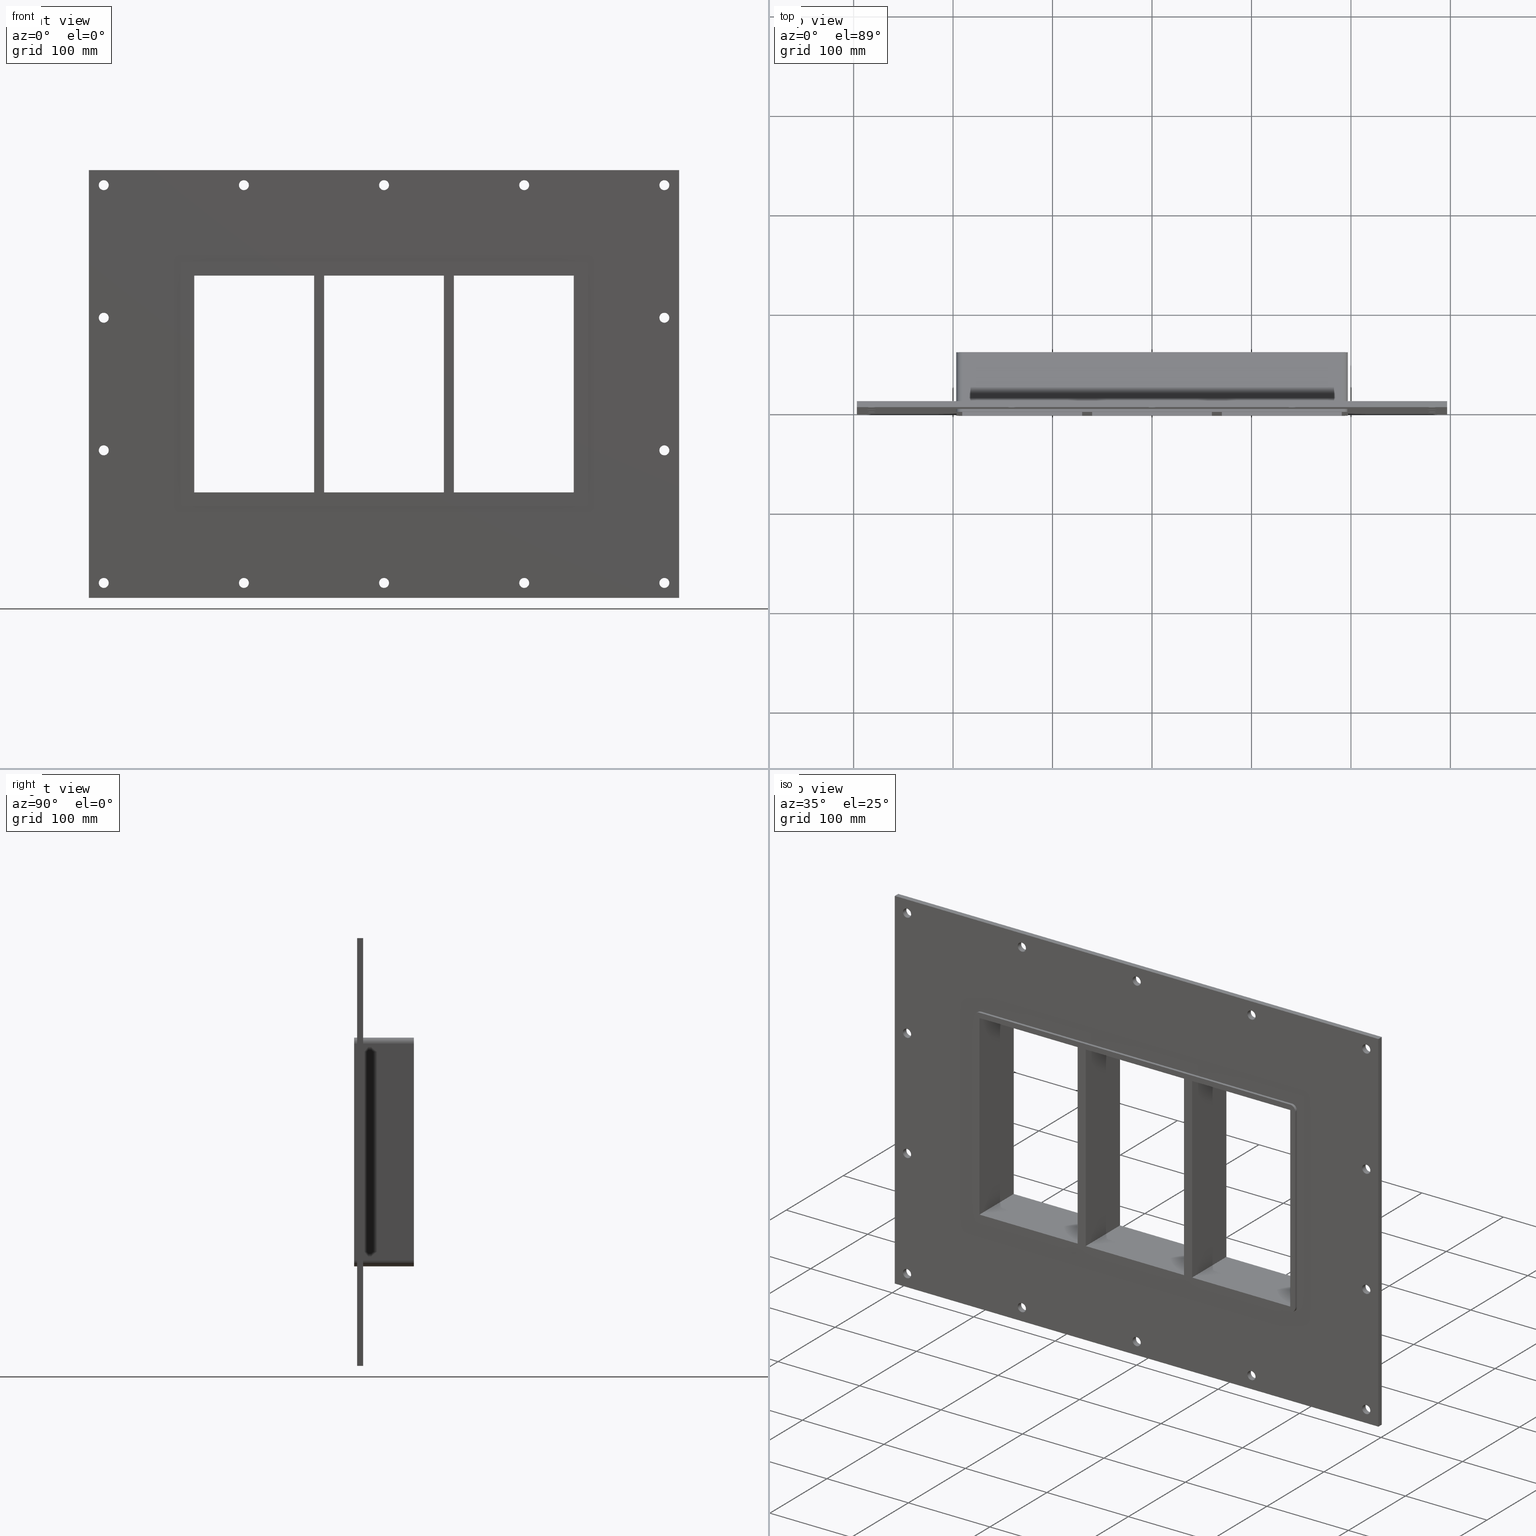
[diagram: canonical four-view strip — front | top / right | iso, engineering-drawing reading convention]
A machine part, canonical four-view strip (front | top / right | iso — engineering-drawing reading convention). The complete STEP part file that produces these views, byte-faithful:
ISO-10303-21;
HEADER;
/****************************************************************
 * Generated by software with PDElib inside                    *
 * PDElib Version v51a, created Wed 11/30/2011                  *
 * ITI Transcendata (http://www.transcendata.com/)              *
 ****************************************************************/
FILE_DESCRIPTION((''),'2;1');
FILE_NAME('C:\\Users\\se-milkar\\Desktop\\RTD Generator\\CreatedFiles\\STEP\\GHFL1006X3.stp','2014-03-10T22:16:22',(''),(''),'Autodesk Inventor 2013','Autodesk Inventor 2013','');
FILE_SCHEMA(('AUTOMOTIVE_DESIGN { 1 0 10303 214 1 1 1 1 }'));
ENDSEC;
DATA;
#5=APPLICATION_CONTEXT('automotive design');
#6=APPLICATION_PROTOCOL_DEFINITION('International Standard','automotive_design',2001,#5);
#7=PRODUCT_CONTEXT('',#5,'mechanical');
#8=PRODUCT('GH FL100','GH FL100',$,(#7));
#9=PRODUCT_RELATED_PRODUCT_CATEGORY('part',$,(#8));
#10=PRODUCT_DEFINITION_FORMATION('',$,#8);
#11=PRODUCT_DEFINITION_CONTEXT('part definition',#5,'design');
#12=PRODUCT_DEFINITION('',$,#10,#11);
#18=(NAMED_UNIT(*)PLANE_ANGLE_UNIT()SI_UNIT($,.RADIAN.));
#19=DIMENSIONAL_EXPONENTS(0.0,0.0,0.0,0.0,0.0,0.0,0.0);
#20=PLANE_ANGLE_MEASURE_WITH_UNIT(PLANE_ANGLE_MEASURE(0.0174532925),#18);
#24=(CONVERSION_BASED_UNIT('DEGREE',#20)NAMED_UNIT(#19)PLANE_ANGLE_UNIT());
#28=(NAMED_UNIT(*)SI_UNIT($,.STERADIAN.)SOLID_ANGLE_UNIT());
#32=(LENGTH_UNIT()NAMED_UNIT(*)SI_UNIT(.MILLI.,.METRE.));
#34=UNCERTAINTY_MEASURE_WITH_UNIT(LENGTH_MEASURE(0.01),#32,'DISTANCE_ACCURACY_VALUE','');
#36=(GEOMETRIC_REPRESENTATION_CONTEXT(3)GLOBAL_UNCERTAINTY_ASSIGNED_CONTEXT((#34))GLOBAL_UNIT_ASSIGNED_CONTEXT((#24,#28,#32))REPRESENTATION_CONTEXT('None','None'));
#37=AXIS2_PLACEMENT_3D('',#38,#39,#40);
#38=CARTESIAN_POINT('',(0.0,0.0,0.0));
#39=DIRECTION('',(0.0,0.0,1.0));
#40=DIRECTION('',(1.0,0.0,0.0));
#41=SHAPE_REPRESENTATION('',(#37),#36);
#42=PRODUCT_DEFINITION_SHAPE('','',#12);
#43=SHAPE_DEFINITION_REPRESENTATION(#42,#41);
#49=(NAMED_UNIT(*)PLANE_ANGLE_UNIT()SI_UNIT($,.RADIAN.));
#50=DIMENSIONAL_EXPONENTS(0.0,0.0,0.0,0.0,0.0,0.0,0.0);
#51=PLANE_ANGLE_MEASURE_WITH_UNIT(PLANE_ANGLE_MEASURE(0.0174532925),#49);
#55=(CONVERSION_BASED_UNIT('DEGREE',#51)NAMED_UNIT(#50)PLANE_ANGLE_UNIT());
#59=(NAMED_UNIT(*)SI_UNIT($,.STERADIAN.)SOLID_ANGLE_UNIT());
#63=(LENGTH_UNIT()NAMED_UNIT(*)SI_UNIT(.MILLI.,.METRE.));
#65=UNCERTAINTY_MEASURE_WITH_UNIT(LENGTH_MEASURE(0.000001),#63,'DISTANCE_ACCURACY_VALUE','');
#67=(GEOMETRIC_REPRESENTATION_CONTEXT(3)GLOBAL_UNCERTAINTY_ASSIGNED_CONTEXT((#65))GLOBAL_UNIT_ASSIGNED_CONTEXT((#55,#59,#63))REPRESENTATION_CONTEXT('','3D'));
#68=CARTESIAN_POINT('',(-281.75000000000017,735.35178656205107,-200.00000000000006));
#69=DIRECTION('',(0.0,-1.0,0.0));
#70=DIRECTION('',(1.0,0.0,0.0));
#71=AXIS2_PLACEMENT_3D('',#68,#69,#70);
#72=CYLINDRICAL_SURFACE('',#71,5.0);
#73=CARTESIAN_POINT('',(-286.75000000000017,5.999999999999943,-200.00000000000006));
#74=VERTEX_POINT('',#73);
#75=CARTESIAN_POINT('',(-281.75000000000017,5.999999999999943,-200.00000000000006));
#76=DIRECTION('',(0.0,-1.0,0.0));
#77=DIRECTION('',(1.0,0.0,0.0));
#78=AXIS2_PLACEMENT_3D('',#75,#76,#77);
#79=CIRCLE('',#78,5.0);
#80=EDGE_CURVE('',#74,#74,#79,.T.);
#81=ORIENTED_EDGE('',*,*,#80,.F.);
#82=EDGE_LOOP('',(#81));
#83=FACE_OUTER_BOUND('',#82,.T.);
#84=CARTESIAN_POINT('',(-276.75000000000017,0.0,-200.00000000000006));
#85=VERTEX_POINT('',#84);
#86=CARTESIAN_POINT('',(-281.75000000000017,0.0,-200.00000000000006));
#87=DIRECTION('',(0.0,1.0,0.0));
#88=DIRECTION('',(1.0,0.0,0.0));
#89=AXIS2_PLACEMENT_3D('',#86,#87,#88);
#90=CIRCLE('',#89,5.0);
#91=EDGE_CURVE('',#85,#85,#90,.T.);
#92=ORIENTED_EDGE('',*,*,#91,.F.);
#93=EDGE_LOOP('',(#92));
#94=FACE_BOUND('',#93,.T.);
#95=ADVANCED_FACE('',(#83,#94),#72,.F.);
#96=CARTESIAN_POINT('',(281.84999999999991,735.35178656205107,-66.700000000000017));
#97=DIRECTION('',(0.0,-1.0,0.0));
#98=DIRECTION('',(1.0,0.0,0.0));
#99=AXIS2_PLACEMENT_3D('',#96,#97,#98);
#100=CYLINDRICAL_SURFACE('',#99,5.0);
#101=CARTESIAN_POINT('',(276.84999999999991,5.999999999999943,-66.700000000000017));
#102=VERTEX_POINT('',#101);
#103=CARTESIAN_POINT('',(281.84999999999991,5.999999999999943,-66.700000000000017));
#104=DIRECTION('',(0.0,-1.0,0.0));
#105=DIRECTION('',(1.0,0.0,0.0));
#106=AXIS2_PLACEMENT_3D('',#103,#104,#105);
#107=CIRCLE('',#106,5.0);
#108=EDGE_CURVE('',#102,#102,#107,.T.);
#109=ORIENTED_EDGE('',*,*,#108,.F.);
#110=EDGE_LOOP('',(#109));
#111=FACE_OUTER_BOUND('',#110,.T.);
#112=CARTESIAN_POINT('',(286.84999999999991,0.0,-66.700000000000017));
#113=VERTEX_POINT('',#112);
#114=CARTESIAN_POINT('',(281.84999999999991,0.0,-66.700000000000017));
#115=DIRECTION('',(0.0,1.0,0.0));
#116=DIRECTION('',(1.0,0.0,0.0));
#117=AXIS2_PLACEMENT_3D('',#114,#115,#116);
#118=CIRCLE('',#117,5.0);
#119=EDGE_CURVE('',#113,#113,#118,.T.);
#120=ORIENTED_EDGE('',*,*,#119,.F.);
#121=EDGE_LOOP('',(#120));
#122=FACE_BOUND('',#121,.T.);
#123=ADVANCED_FACE('',(#111,#122),#100,.F.);
#124=CARTESIAN_POINT('',(-281.75000000000017,735.35178656205107,-66.700000000000017));
#125=DIRECTION('',(0.0,-1.0,0.0));
#126=DIRECTION('',(1.0,0.0,0.0));
#127=AXIS2_PLACEMENT_3D('',#124,#125,#126);
#128=CYLINDRICAL_SURFACE('',#127,5.0);
#129=CARTESIAN_POINT('',(-286.75000000000017,5.999999999999943,-66.700000000000017));
#130=VERTEX_POINT('',#129);
#131=CARTESIAN_POINT('',(-281.75000000000017,5.999999999999943,-66.700000000000017));
#132=DIRECTION('',(0.0,-1.0,0.0));
#133=DIRECTION('',(1.0,0.0,0.0));
#134=AXIS2_PLACEMENT_3D('',#131,#132,#133);
#135=CIRCLE('',#134,5.0);
#136=EDGE_CURVE('',#130,#130,#135,.T.);
#137=ORIENTED_EDGE('',*,*,#136,.F.);
#138=EDGE_LOOP('',(#137));
#139=FACE_OUTER_BOUND('',#138,.T.);
#140=CARTESIAN_POINT('',(-276.75000000000017,0.0,-66.700000000000017));
#141=VERTEX_POINT('',#140);
#142=CARTESIAN_POINT('',(-281.75000000000017,0.0,-66.700000000000017));
#143=DIRECTION('',(0.0,1.0,0.0));
#144=DIRECTION('',(1.0,0.0,0.0));
#145=AXIS2_PLACEMENT_3D('',#142,#143,#144);
#146=CIRCLE('',#145,5.0);
#147=EDGE_CURVE('',#141,#141,#146,.T.);
#148=ORIENTED_EDGE('',*,*,#147,.F.);
#149=EDGE_LOOP('',(#148));
#150=FACE_BOUND('',#149,.T.);
#151=ADVANCED_FACE('',(#139,#150),#128,.F.);
#152=CARTESIAN_POINT('',(281.84999999999991,735.35178656205107,66.599999999999994));
#153=DIRECTION('',(0.0,-1.0,0.0));
#154=DIRECTION('',(1.0,0.0,0.0));
#155=AXIS2_PLACEMENT_3D('',#152,#153,#154);
#156=CYLINDRICAL_SURFACE('',#155,5.0);
#157=CARTESIAN_POINT('',(276.84999999999991,5.999999999999943,66.599999999999994));
#158=VERTEX_POINT('',#157);
#159=CARTESIAN_POINT('',(281.84999999999991,5.999999999999943,66.599999999999994));
#160=DIRECTION('',(0.0,-1.0,0.0));
#161=DIRECTION('',(1.0,0.0,0.0));
#162=AXIS2_PLACEMENT_3D('',#159,#160,#161);
#163=CIRCLE('',#162,5.0);
#164=EDGE_CURVE('',#158,#158,#163,.T.);
#165=ORIENTED_EDGE('',*,*,#164,.F.);
#166=EDGE_LOOP('',(#165));
#167=FACE_OUTER_BOUND('',#166,.T.);
#168=CARTESIAN_POINT('',(286.84999999999991,0.0,66.599999999999994));
#169=VERTEX_POINT('',#168);
#170=CARTESIAN_POINT('',(281.84999999999991,0.0,66.599999999999994));
#171=DIRECTION('',(0.0,1.0,0.0));
#172=DIRECTION('',(1.0,0.0,0.0));
#173=AXIS2_PLACEMENT_3D('',#170,#171,#172);
#174=CIRCLE('',#173,5.0);
#175=EDGE_CURVE('',#169,#169,#174,.T.);
#176=ORIENTED_EDGE('',*,*,#175,.F.);
#177=EDGE_LOOP('',(#176));
#178=FACE_BOUND('',#177,.T.);
#179=ADVANCED_FACE('',(#167,#178),#156,.F.);
#180=CARTESIAN_POINT('',(-281.75000000000017,735.35178656205107,66.599999999999994));
#181=DIRECTION('',(0.0,-1.0,0.0));
#182=DIRECTION('',(1.0,0.0,0.0));
#183=AXIS2_PLACEMENT_3D('',#180,#181,#182);
#184=CYLINDRICAL_SURFACE('',#183,5.0);
#185=CARTESIAN_POINT('',(-286.75000000000017,5.999999999999943,66.599999999999994));
#186=VERTEX_POINT('',#185);
#187=CARTESIAN_POINT('',(-281.75000000000017,5.999999999999943,66.599999999999994));
#188=DIRECTION('',(0.0,-1.0,0.0));
#189=DIRECTION('',(1.0,0.0,0.0));
#190=AXIS2_PLACEMENT_3D('',#187,#188,#189);
#191=CIRCLE('',#190,5.0);
#192=EDGE_CURVE('',#186,#186,#191,.T.);
#193=ORIENTED_EDGE('',*,*,#192,.F.);
#194=EDGE_LOOP('',(#193));
#195=FACE_OUTER_BOUND('',#194,.T.);
#196=CARTESIAN_POINT('',(-276.75000000000017,0.0,66.599999999999994));
#197=VERTEX_POINT('',#196);
#198=CARTESIAN_POINT('',(-281.75000000000017,0.0,66.599999999999994));
#199=DIRECTION('',(0.0,1.0,0.0));
#200=DIRECTION('',(1.0,0.0,0.0));
#201=AXIS2_PLACEMENT_3D('',#198,#199,#200);
#202=CIRCLE('',#201,5.0);
#203=EDGE_CURVE('',#197,#197,#202,.T.);
#204=ORIENTED_EDGE('',*,*,#203,.F.);
#205=EDGE_LOOP('',(#204));
#206=FACE_BOUND('',#205,.T.);
#207=ADVANCED_FACE('',(#195,#206),#184,.F.);
#208=CARTESIAN_POINT('',(-140.85000000000014,735.35178656205107,199.90000000000003));
#209=DIRECTION('',(0.0,-1.0,0.0));
#210=DIRECTION('',(1.0,0.0,0.0));
#211=AXIS2_PLACEMENT_3D('',#208,#209,#210);
#212=CYLINDRICAL_SURFACE('',#211,5.0);
#213=CARTESIAN_POINT('',(-145.85000000000014,5.999999999999943,199.90000000000003));
#214=VERTEX_POINT('',#213);
#215=CARTESIAN_POINT('',(-140.85000000000014,5.999999999999943,199.90000000000003));
#216=DIRECTION('',(0.0,-1.0,0.0));
#217=DIRECTION('',(1.0,0.0,0.0));
#218=AXIS2_PLACEMENT_3D('',#215,#216,#217);
#219=CIRCLE('',#218,5.0);
#220=EDGE_CURVE('',#214,#214,#219,.T.);
#221=ORIENTED_EDGE('',*,*,#220,.F.);
#222=EDGE_LOOP('',(#221));
#223=FACE_OUTER_BOUND('',#222,.T.);
#224=CARTESIAN_POINT('',(-135.85000000000014,0.0,199.90000000000003));
#225=VERTEX_POINT('',#224);
#226=CARTESIAN_POINT('',(-140.85000000000014,0.0,199.90000000000003));
#227=DIRECTION('',(0.0,1.0,0.0));
#228=DIRECTION('',(1.0,0.0,0.0));
#229=AXIS2_PLACEMENT_3D('',#226,#227,#228);
#230=CIRCLE('',#229,5.0);
#231=EDGE_CURVE('',#225,#225,#230,.T.);
#232=ORIENTED_EDGE('',*,*,#231,.F.);
#233=EDGE_LOOP('',(#232));
#234=FACE_BOUND('',#233,.T.);
#235=ADVANCED_FACE('',(#223,#234),#212,.F.);
#236=CARTESIAN_POINT('',(-140.85000000000014,735.35178656205107,-200.00000000000006));
#237=DIRECTION('',(0.0,-1.0,0.0));
#238=DIRECTION('',(1.0,0.0,0.0));
#239=AXIS2_PLACEMENT_3D('',#236,#237,#238);
#240=CYLINDRICAL_SURFACE('',#239,5.0);
#241=CARTESIAN_POINT('',(-145.85000000000014,5.999999999999943,-200.00000000000006));
#242=VERTEX_POINT('',#241);
#243=CARTESIAN_POINT('',(-140.85000000000014,5.999999999999943,-200.00000000000006));
#244=DIRECTION('',(0.0,-1.0,0.0));
#245=DIRECTION('',(1.0,0.0,0.0));
#246=AXIS2_PLACEMENT_3D('',#243,#244,#245);
#247=CIRCLE('',#246,5.0);
#248=EDGE_CURVE('',#242,#242,#247,.T.);
#249=ORIENTED_EDGE('',*,*,#248,.F.);
#250=EDGE_LOOP('',(#249));
#251=FACE_OUTER_BOUND('',#250,.T.);
#252=CARTESIAN_POINT('',(-135.85000000000014,0.0,-200.00000000000006));
#253=VERTEX_POINT('',#252);
#254=CARTESIAN_POINT('',(-140.85000000000014,0.0,-200.00000000000006));
#255=DIRECTION('',(0.0,1.0,0.0));
#256=DIRECTION('',(1.0,0.0,0.0));
#257=AXIS2_PLACEMENT_3D('',#254,#255,#256);
#258=CIRCLE('',#257,5.0);
#259=EDGE_CURVE('',#253,#253,#258,.T.);
#260=ORIENTED_EDGE('',*,*,#259,.F.);
#261=EDGE_LOOP('',(#260));
#262=FACE_BOUND('',#261,.T.);
#263=ADVANCED_FACE('',(#251,#262),#240,.F.);
#264=CARTESIAN_POINT('',(0.049999999999848,735.35178656205107,199.90000000000003));
#265=DIRECTION('',(0.0,-1.0,0.0));
#266=DIRECTION('',(1.0,0.0,0.0));
#267=AXIS2_PLACEMENT_3D('',#264,#265,#266);
#268=CYLINDRICAL_SURFACE('',#267,5.0);
#269=CARTESIAN_POINT('',(-4.950000000000152,5.999999999999943,199.90000000000003));
#270=VERTEX_POINT('',#269);
#271=CARTESIAN_POINT('',(0.049999999999848,5.999999999999943,199.90000000000003));
#272=DIRECTION('',(0.0,-1.0,0.0));
#273=DIRECTION('',(1.0,0.0,0.0));
#274=AXIS2_PLACEMENT_3D('',#271,#272,#273);
#275=CIRCLE('',#274,5.0);
#276=EDGE_CURVE('',#270,#270,#275,.T.);
#277=ORIENTED_EDGE('',*,*,#276,.F.);
#278=EDGE_LOOP('',(#277));
#279=FACE_OUTER_BOUND('',#278,.T.);
#280=CARTESIAN_POINT('',(5.049999999999848,0.0,199.90000000000003));
#281=VERTEX_POINT('',#280);
#282=CARTESIAN_POINT('',(0.049999999999848,0.0,199.90000000000003));
#283=DIRECTION('',(0.0,1.0,0.0));
#284=DIRECTION('',(1.0,0.0,0.0));
#285=AXIS2_PLACEMENT_3D('',#282,#283,#284);
#286=CIRCLE('',#285,5.0);
#287=EDGE_CURVE('',#281,#281,#286,.T.);
#288=ORIENTED_EDGE('',*,*,#287,.F.);
#289=EDGE_LOOP('',(#288));
#290=FACE_BOUND('',#289,.T.);
#291=ADVANCED_FACE('',(#279,#290),#268,.F.);
#292=CARTESIAN_POINT('',(0.049999999999848,735.35178656205107,-200.00000000000006));
#293=DIRECTION('',(0.0,-1.0,0.0));
#294=DIRECTION('',(1.0,0.0,0.0));
#295=AXIS2_PLACEMENT_3D('',#292,#293,#294);
#296=CYLINDRICAL_SURFACE('',#295,5.0);
#297=CARTESIAN_POINT('',(-4.950000000000152,5.999999999999943,-200.00000000000006));
#298=VERTEX_POINT('',#297);
#299=CARTESIAN_POINT('',(0.049999999999848,5.999999999999943,-200.00000000000006));
#300=DIRECTION('',(0.0,-1.0,0.0));
#301=DIRECTION('',(1.0,0.0,0.0));
#302=AXIS2_PLACEMENT_3D('',#299,#300,#301);
#303=CIRCLE('',#302,5.0);
#304=EDGE_CURVE('',#298,#298,#303,.T.);
#305=ORIENTED_EDGE('',*,*,#304,.F.);
#306=EDGE_LOOP('',(#305));
#307=FACE_OUTER_BOUND('',#306,.T.);
#308=CARTESIAN_POINT('',(5.049999999999848,0.0,-200.00000000000006));
#309=VERTEX_POINT('',#308);
#310=CARTESIAN_POINT('',(0.049999999999848,0.0,-200.00000000000006));
#311=DIRECTION('',(0.0,1.0,0.0));
#312=DIRECTION('',(1.0,0.0,0.0));
#313=AXIS2_PLACEMENT_3D('',#310,#311,#312);
#314=CIRCLE('',#313,5.0);
#315=EDGE_CURVE('',#309,#309,#314,.T.);
#316=ORIENTED_EDGE('',*,*,#315,.F.);
#317=EDGE_LOOP('',(#316));
#318=FACE_BOUND('',#317,.T.);
#319=ADVANCED_FACE('',(#307,#318),#296,.F.);
#320=CARTESIAN_POINT('',(140.94999999999987,735.35178656205107,199.90000000000003));
#321=DIRECTION('',(0.0,-1.0,0.0));
#322=DIRECTION('',(1.0,0.0,0.0));
#323=AXIS2_PLACEMENT_3D('',#320,#321,#322);
#324=CYLINDRICAL_SURFACE('',#323,5.0);
#325=CARTESIAN_POINT('',(135.94999999999987,5.999999999999943,199.90000000000003));
#326=VERTEX_POINT('',#325);
#327=CARTESIAN_POINT('',(140.94999999999987,5.999999999999943,199.90000000000003));
#328=DIRECTION('',(0.0,-1.0,0.0));
#329=DIRECTION('',(1.0,0.0,0.0));
#330=AXIS2_PLACEMENT_3D('',#327,#328,#329);
#331=CIRCLE('',#330,5.0);
#332=EDGE_CURVE('',#326,#326,#331,.T.);
#333=ORIENTED_EDGE('',*,*,#332,.F.);
#334=EDGE_LOOP('',(#333));
#335=FACE_OUTER_BOUND('',#334,.T.);
#336=CARTESIAN_POINT('',(145.94999999999987,0.0,199.90000000000003));
#337=VERTEX_POINT('',#336);
#338=CARTESIAN_POINT('',(140.94999999999987,0.0,199.90000000000003));
#339=DIRECTION('',(0.0,1.0,0.0));
#340=DIRECTION('',(1.0,0.0,0.0));
#341=AXIS2_PLACEMENT_3D('',#338,#339,#340);
#342=CIRCLE('',#341,5.0);
#343=EDGE_CURVE('',#337,#337,#342,.T.);
#344=ORIENTED_EDGE('',*,*,#343,.F.);
#345=EDGE_LOOP('',(#344));
#346=FACE_BOUND('',#345,.T.);
#347=ADVANCED_FACE('',(#335,#346),#324,.F.);
#348=CARTESIAN_POINT('',(140.94999999999987,735.35178656205107,-200.00000000000006));
#349=DIRECTION('',(0.0,-1.0,0.0));
#350=DIRECTION('',(1.0,0.0,0.0));
#351=AXIS2_PLACEMENT_3D('',#348,#349,#350);
#352=CYLINDRICAL_SURFACE('',#351,5.0);
#353=CARTESIAN_POINT('',(135.94999999999987,5.999999999999943,-200.00000000000006));
#354=VERTEX_POINT('',#353);
#355=CARTESIAN_POINT('',(140.94999999999987,5.999999999999943,-200.00000000000006));
#356=DIRECTION('',(0.0,-1.0,0.0));
#357=DIRECTION('',(1.0,0.0,0.0));
#358=AXIS2_PLACEMENT_3D('',#355,#356,#357);
#359=CIRCLE('',#358,5.0);
#360=EDGE_CURVE('',#354,#354,#359,.T.);
#361=ORIENTED_EDGE('',*,*,#360,.F.);
#362=EDGE_LOOP('',(#361));
#363=FACE_OUTER_BOUND('',#362,.T.);
#364=CARTESIAN_POINT('',(145.94999999999987,0.0,-200.00000000000006));
#365=VERTEX_POINT('',#364);
#366=CARTESIAN_POINT('',(140.94999999999987,0.0,-200.00000000000006));
#367=DIRECTION('',(0.0,1.0,0.0));
#368=DIRECTION('',(1.0,0.0,0.0));
#369=AXIS2_PLACEMENT_3D('',#366,#367,#368);
#370=CIRCLE('',#369,5.0);
#371=EDGE_CURVE('',#365,#365,#370,.T.);
#372=ORIENTED_EDGE('',*,*,#371,.F.);
#373=EDGE_LOOP('',(#372));
#374=FACE_BOUND('',#373,.T.);
#375=ADVANCED_FACE('',(#363,#374),#352,.F.);
#376=CARTESIAN_POINT('',(281.84999999999991,735.35178656205107,-200.00000000000006));
#377=DIRECTION('',(0.0,-1.0,0.0));
#378=DIRECTION('',(1.0,0.0,0.0));
#379=AXIS2_PLACEMENT_3D('',#376,#377,#378);
#380=CYLINDRICAL_SURFACE('',#379,5.0);
#381=CARTESIAN_POINT('',(276.84999999999991,5.999999999999943,-200.00000000000006));
#382=VERTEX_POINT('',#381);
#383=CARTESIAN_POINT('',(281.84999999999991,5.999999999999943,-200.00000000000006));
#384=DIRECTION('',(0.0,-1.0,0.0));
#385=DIRECTION('',(1.0,0.0,0.0));
#386=AXIS2_PLACEMENT_3D('',#383,#384,#385);
#387=CIRCLE('',#386,5.0);
#388=EDGE_CURVE('',#382,#382,#387,.T.);
#389=ORIENTED_EDGE('',*,*,#388,.F.);
#390=EDGE_LOOP('',(#389));
#391=FACE_OUTER_BOUND('',#390,.T.);
#392=CARTESIAN_POINT('',(286.84999999999991,0.0,-200.00000000000006));
#393=VERTEX_POINT('',#392);
#394=CARTESIAN_POINT('',(281.84999999999991,0.0,-200.00000000000006));
#395=DIRECTION('',(0.0,1.0,0.0));
#396=DIRECTION('',(1.0,0.0,0.0));
#397=AXIS2_PLACEMENT_3D('',#394,#395,#396);
#398=CIRCLE('',#397,5.0);
#399=EDGE_CURVE('',#393,#393,#398,.T.);
#400=ORIENTED_EDGE('',*,*,#399,.F.);
#401=EDGE_LOOP('',(#400));
#402=FACE_BOUND('',#401,.T.);
#403=ADVANCED_FACE('',(#391,#402),#380,.F.);
#404=CARTESIAN_POINT('',(-281.75000000000017,735.35178656205107,199.90000000000003));
#405=DIRECTION('',(0.0,-1.0,0.0));
#406=DIRECTION('',(1.0,0.0,0.0));
#407=AXIS2_PLACEMENT_3D('',#404,#405,#406);
#408=CYLINDRICAL_SURFACE('',#407,5.0);
#409=CARTESIAN_POINT('',(-286.75000000000017,5.999999999999943,199.90000000000003));
#410=VERTEX_POINT('',#409);
#411=CARTESIAN_POINT('',(-281.75000000000017,5.999999999999943,199.90000000000003));
#412=DIRECTION('',(0.0,-1.0,0.0));
#413=DIRECTION('',(1.0,0.0,0.0));
#414=AXIS2_PLACEMENT_3D('',#411,#412,#413);
#415=CIRCLE('',#414,5.0);
#416=EDGE_CURVE('',#410,#410,#415,.T.);
#417=ORIENTED_EDGE('',*,*,#416,.F.);
#418=EDGE_LOOP('',(#417));
#419=FACE_OUTER_BOUND('',#418,.T.);
#420=CARTESIAN_POINT('',(-276.75000000000017,0.0,199.90000000000003));
#421=VERTEX_POINT('',#420);
#422=CARTESIAN_POINT('',(-281.75000000000017,0.0,199.90000000000003));
#423=DIRECTION('',(0.0,1.0,0.0));
#424=DIRECTION('',(1.0,0.0,0.0));
#425=AXIS2_PLACEMENT_3D('',#422,#423,#424);
#426=CIRCLE('',#425,5.0);
#427=EDGE_CURVE('',#421,#421,#426,.T.);
#428=ORIENTED_EDGE('',*,*,#427,.F.);
#429=EDGE_LOOP('',(#428));
#430=FACE_BOUND('',#429,.T.);
#431=ADVANCED_FACE('',(#419,#430),#408,.F.);
#432=CARTESIAN_POINT('',(281.84999999999991,735.35178656205107,199.90000000000003));
#433=DIRECTION('',(0.0,-1.0,0.0));
#434=DIRECTION('',(1.0,0.0,0.0));
#435=AXIS2_PLACEMENT_3D('',#432,#433,#434);
#436=CYLINDRICAL_SURFACE('',#435,5.0);
#437=CARTESIAN_POINT('',(276.84999999999991,5.999999999999943,199.90000000000003));
#438=VERTEX_POINT('',#437);
#439=CARTESIAN_POINT('',(281.84999999999991,5.999999999999943,199.90000000000003));
#440=DIRECTION('',(0.0,-1.0,0.0));
#441=DIRECTION('',(1.0,0.0,0.0));
#442=AXIS2_PLACEMENT_3D('',#439,#440,#441);
#443=CIRCLE('',#442,5.0);
#444=EDGE_CURVE('',#438,#438,#443,.T.);
#445=ORIENTED_EDGE('',*,*,#444,.F.);
#446=EDGE_LOOP('',(#445));
#447=FACE_OUTER_BOUND('',#446,.T.);
#448=CARTESIAN_POINT('',(286.84999999999991,0.0,199.90000000000003));
#449=VERTEX_POINT('',#448);
#450=CARTESIAN_POINT('',(281.84999999999991,0.0,199.90000000000003));
#451=DIRECTION('',(0.0,1.0,0.0));
#452=DIRECTION('',(1.0,0.0,0.0));
#453=AXIS2_PLACEMENT_3D('',#450,#451,#452);
#454=CIRCLE('',#453,5.0);
#455=EDGE_CURVE('',#449,#449,#454,.T.);
#456=ORIENTED_EDGE('',*,*,#455,.F.);
#457=EDGE_LOOP('',(#456));
#458=FACE_BOUND('',#457,.T.);
#459=ADVANCED_FACE('',(#447,#458),#436,.F.);
#460=CARTESIAN_POINT('',(60.249999999998671,-3.0,-108.99999999999999));
#461=DIRECTION('',(-1.0,0.0,0.0));
#462=DIRECTION('',(0.0,0.0,1.0));
#463=AXIS2_PLACEMENT_3D('',#460,#461,#462);
#464=PLANE('',#463);
#465=CARTESIAN_POINT('',(60.249999999998671,-3.0,-108.99999999999999));
#466=VERTEX_POINT('',#465);
#467=CARTESIAN_POINT('',(60.249999999998622,-3.0,109.00000000000003));
#468=VERTEX_POINT('',#467);
#469=CARTESIAN_POINT('',(60.249999999998671,-3.0,-108.99999999999999));
#470=DIRECTION('',(0.0,0.0,1.0));
#471=VECTOR('',#470,218.0);
#472=LINE('',#469,#471);
#473=EDGE_CURVE('',#466,#468,#472,.T.);
#474=ORIENTED_EDGE('',*,*,#473,.T.);
#475=CARTESIAN_POINT('',(60.249999999998622,57.0,109.00000000000003));
#476=VERTEX_POINT('',#475);
#477=CARTESIAN_POINT('',(60.249999999998607,57.000000000000007,109.00000000000003));
#478=DIRECTION('',(0.0,-1.0,0.0));
#479=VECTOR('',#478,60.000000000000007);
#480=LINE('',#477,#479);
#481=EDGE_CURVE('',#476,#468,#480,.T.);
#482=ORIENTED_EDGE('',*,*,#481,.F.);
#483=CARTESIAN_POINT('',(60.249999999998671,57.0,-108.99999999999999));
#484=VERTEX_POINT('',#483);
#485=CARTESIAN_POINT('',(60.249999999998671,57.0,-108.99999999999999));
#486=DIRECTION('',(0.0,0.0,1.0));
#487=VECTOR('',#486,218.0);
#488=LINE('',#485,#487);
#489=EDGE_CURVE('',#484,#476,#488,.T.);
#490=ORIENTED_EDGE('',*,*,#489,.F.);
#491=CARTESIAN_POINT('',(60.249999999998671,-3.0,-108.99999999999999));
#492=DIRECTION('',(0.0,1.0,0.0));
#493=VECTOR('',#492,60.000000000000007);
#494=LINE('',#491,#493);
#495=EDGE_CURVE('',#466,#484,#494,.T.);
#496=ORIENTED_EDGE('',*,*,#495,.F.);
#497=EDGE_LOOP('',(#474,#482,#490,#496));
#498=FACE_OUTER_BOUND('',#497,.T.);
#499=ADVANCED_FACE('',(#498),#464,.T.);
#500=CARTESIAN_POINT('',(70.250000000003638,-3.0,109.00000000000003));
#501=DIRECTION('',(1.0,0.0,0.0));
#502=DIRECTION('',(0.0,0.0,-1.0));
#503=AXIS2_PLACEMENT_3D('',#500,#501,#502);
#504=PLANE('',#503);
#505=CARTESIAN_POINT('',(70.250000000003638,-3.0,109.00000000000003));
#506=VERTEX_POINT('',#505);
#507=CARTESIAN_POINT('',(70.250000000003638,-3.0,-108.99999999998425));
#508=VERTEX_POINT('',#507);
#509=CARTESIAN_POINT('',(70.250000000003638,-3.0,109.00000000000003));
#510=DIRECTION('',(0.0,0.0,-1.0));
#511=VECTOR('',#510,217.99999999998425);
#512=LINE('',#509,#511);
#513=EDGE_CURVE('',#506,#508,#512,.T.);
#514=ORIENTED_EDGE('',*,*,#513,.T.);
#515=CARTESIAN_POINT('',(70.250000000003638,57.0,-108.99999999998425));
#516=VERTEX_POINT('',#515);
#517=CARTESIAN_POINT('',(70.250000000003638,57.000000000000007,-108.99999999999999));
#518=DIRECTION('',(0.0,-1.0,0.0));
#519=VECTOR('',#518,60.000000000000007);
#520=LINE('',#517,#519);
#521=EDGE_CURVE('',#516,#508,#520,.T.);
#522=ORIENTED_EDGE('',*,*,#521,.F.);
#523=CARTESIAN_POINT('',(70.250000000003638,57.0,109.00000000000003));
#524=VERTEX_POINT('',#523);
#525=CARTESIAN_POINT('',(70.250000000003638,57.0,109.00000000000003));
#526=DIRECTION('',(0.0,0.0,-1.0));
#527=VECTOR('',#526,217.99999999998425);
#528=LINE('',#525,#527);
#529=EDGE_CURVE('',#524,#516,#528,.T.);
#530=ORIENTED_EDGE('',*,*,#529,.F.);
#531=CARTESIAN_POINT('',(70.250000000003638,-3.0,109.00000000000003));
#532=DIRECTION('',(0.0,1.0,0.0));
#533=VECTOR('',#532,60.000000000000007);
#534=LINE('',#531,#533);
#535=EDGE_CURVE('',#506,#524,#534,.T.);
#536=ORIENTED_EDGE('',*,*,#535,.F.);
#537=EDGE_LOOP('',(#514,#522,#530,#536));
#538=FACE_OUTER_BOUND('',#537,.T.);
#539=ADVANCED_FACE('',(#538),#504,.T.);
#540=CARTESIAN_POINT('',(190.75000000000011,0.0,-108.99999999999999));
#541=DIRECTION('',(0.0,0.0,-1.0));
#542=DIRECTION('',(-1.0,0.0,0.0));
#543=AXIS2_PLACEMENT_3D('',#540,#541,#542);
#544=PLANE('',#543);
#545=ORIENTED_EDGE('',*,*,#495,.T.);
#546=CARTESIAN_POINT('',(-60.249999999996362,57.0,-108.99999999998425));
#547=VERTEX_POINT('',#546);
#548=CARTESIAN_POINT('',(-60.249999999996362,57.0,-108.99999999999999));
#549=DIRECTION('',(1.0,0.0,0.0));
#550=VECTOR('',#549,120.49999999999504);
#551=LINE('',#548,#550);
#552=EDGE_CURVE('',#547,#484,#551,.T.);
#553=ORIENTED_EDGE('',*,*,#552,.F.);
#554=CARTESIAN_POINT('',(-60.249999999996362,-3.0,-108.99999999998425));
#555=VERTEX_POINT('',#554);
#556=CARTESIAN_POINT('',(-60.249999999996362,57.000000000000007,-108.99999999999999));
#557=DIRECTION('',(0.0,-1.0,0.0));
#558=VECTOR('',#557,60.000000000000007);
#559=LINE('',#556,#558);
#560=EDGE_CURVE('',#547,#555,#559,.T.);
#561=ORIENTED_EDGE('',*,*,#560,.T.);
#562=CARTESIAN_POINT('',(60.249999999998678,-3.0,-108.99999999999999));
#563=DIRECTION('',(-1.0,0.0,0.0));
#564=VECTOR('',#563,120.49999999999504);
#565=LINE('',#562,#564);
#566=EDGE_CURVE('',#466,#555,#565,.T.);
#567=ORIENTED_EDGE('',*,*,#566,.F.);
#568=EDGE_LOOP('',(#545,#553,#561,#567));
#569=FACE_OUTER_BOUND('',#568,.T.);
#570=ADVANCED_FACE('',(#569),#544,.F.);
#571=CARTESIAN_POINT('',(190.75000000000011,0.0,-108.99999999999999));
#572=DIRECTION('',(0.0,0.0,-1.0));
#573=DIRECTION('',(-1.0,0.0,0.0));
#574=AXIS2_PLACEMENT_3D('',#571,#572,#573);
#575=PLANE('',#574);
#576=ORIENTED_EDGE('',*,*,#521,.T.);
#577=CARTESIAN_POINT('',(190.75000000000011,-3.0,-108.99999999999999));
#578=VERTEX_POINT('',#577);
#579=CARTESIAN_POINT('',(190.75000000000011,-3.0,-108.99999999999999));
#580=DIRECTION('',(-1.0,0.0,0.0));
#581=VECTOR('',#580,120.49999999999646);
#582=LINE('',#579,#581);
#583=EDGE_CURVE('',#578,#508,#582,.T.);
#584=ORIENTED_EDGE('',*,*,#583,.F.);
#585=CARTESIAN_POINT('',(190.75000000000011,57.0,-108.99999999999999));
#586=VERTEX_POINT('',#585);
#587=CARTESIAN_POINT('',(190.75000000000011,56.999999999999993,-108.99999999999999));
#588=DIRECTION('',(0.0,-1.0,0.0));
#589=VECTOR('',#588,59.999999999999993);
#590=LINE('',#587,#589);
#591=EDGE_CURVE('',#586,#578,#590,.T.);
#592=ORIENTED_EDGE('',*,*,#591,.F.);
#593=CARTESIAN_POINT('',(70.250000000003652,57.0,-108.99999999999999));
#594=DIRECTION('',(1.0,0.0,0.0));
#595=VECTOR('',#594,120.49999999999646);
#596=LINE('',#593,#595);
#597=EDGE_CURVE('',#516,#586,#596,.T.);
#598=ORIENTED_EDGE('',*,*,#597,.F.);
#599=EDGE_LOOP('',(#576,#584,#592,#598));
#600=FACE_OUTER_BOUND('',#599,.T.);
#601=ADVANCED_FACE('',(#600),#575,.F.);
#602=CARTESIAN_POINT('',(-190.75000000000003,0.0,109.00000000000003));
#603=DIRECTION('',(0.0,0.0,1.0));
#604=DIRECTION('',(1.0,0.0,0.0));
#605=AXIS2_PLACEMENT_3D('',#602,#603,#604);
#606=PLANE('',#605);
#607=ORIENTED_EDGE('',*,*,#535,.T.);
#608=CARTESIAN_POINT('',(190.75000000000011,57.0,109.00000000000003));
#609=VERTEX_POINT('',#608);
#610=CARTESIAN_POINT('',(190.75000000000011,57.0,109.00000000000003));
#611=DIRECTION('',(-1.0,0.0,0.0));
#612=VECTOR('',#611,120.49999999999646);
#613=LINE('',#610,#612);
#614=EDGE_CURVE('',#609,#524,#613,.T.);
#615=ORIENTED_EDGE('',*,*,#614,.F.);
#616=CARTESIAN_POINT('',(190.75000000000011,-3.0,109.00000000000003));
#617=VERTEX_POINT('',#616);
#618=CARTESIAN_POINT('',(190.75000000000011,-3.0,109.00000000000003));
#619=DIRECTION('',(0.0,1.0,0.0));
#620=VECTOR('',#619,60.0);
#621=LINE('',#618,#620);
#622=EDGE_CURVE('',#617,#609,#621,.T.);
#623=ORIENTED_EDGE('',*,*,#622,.F.);
#624=CARTESIAN_POINT('',(70.250000000003652,-3.0,109.00000000000003));
#625=DIRECTION('',(1.0,0.0,0.0));
#626=VECTOR('',#625,120.49999999999646);
#627=LINE('',#624,#626);
#628=EDGE_CURVE('',#506,#617,#627,.T.);
#629=ORIENTED_EDGE('',*,*,#628,.F.);
#630=EDGE_LOOP('',(#607,#615,#623,#629));
#631=FACE_OUTER_BOUND('',#630,.T.);
#632=ADVANCED_FACE('',(#631),#606,.F.);
#633=CARTESIAN_POINT('',(-190.75000000000003,0.0,109.00000000000003));
#634=DIRECTION('',(0.0,0.0,1.0));
#635=DIRECTION('',(1.0,0.0,0.0));
#636=AXIS2_PLACEMENT_3D('',#633,#634,#635);
#637=PLANE('',#636);
#638=ORIENTED_EDGE('',*,*,#481,.T.);
#639=CARTESIAN_POINT('',(-60.249999999996362,-3.0,109.00000000000003));
#640=VERTEX_POINT('',#639);
#641=CARTESIAN_POINT('',(-60.249999999996362,-3.0,109.00000000000003));
#642=DIRECTION('',(1.0,0.0,0.0));
#643=VECTOR('',#642,120.49999999999498);
#644=LINE('',#641,#643);
#645=EDGE_CURVE('',#640,#468,#644,.T.);
#646=ORIENTED_EDGE('',*,*,#645,.F.);
#647=CARTESIAN_POINT('',(-60.249999999996362,57.0,109.00000000000003));
#648=VERTEX_POINT('',#647);
#649=CARTESIAN_POINT('',(-60.249999999996362,-3.0,109.00000000000003));
#650=DIRECTION('',(0.0,1.0,0.0));
#651=VECTOR('',#650,60.000000000000007);
#652=LINE('',#649,#651);
#653=EDGE_CURVE('',#640,#648,#652,.T.);
#654=ORIENTED_EDGE('',*,*,#653,.T.);
#655=CARTESIAN_POINT('',(60.249999999998622,57.0,109.00000000000003));
#656=DIRECTION('',(-1.0,0.0,0.0));
#657=VECTOR('',#656,120.49999999999498);
#658=LINE('',#655,#657);
#659=EDGE_CURVE('',#476,#648,#658,.T.);
#660=ORIENTED_EDGE('',*,*,#659,.F.);
#661=EDGE_LOOP('',(#638,#646,#654,#660));
#662=FACE_OUTER_BOUND('',#661,.T.);
#663=ADVANCED_FACE('',(#662),#637,.F.);
#664=CARTESIAN_POINT('',(-70.250000000001336,-3.0,-108.99999999999999));
#665=DIRECTION('',(-1.0,0.0,0.0));
#666=DIRECTION('',(0.0,0.0,1.0));
#667=AXIS2_PLACEMENT_3D('',#664,#665,#666);
#668=PLANE('',#667);
#669=CARTESIAN_POINT('',(-70.250000000001336,-3.0,-108.99999999999999));
#670=VERTEX_POINT('',#669);
#671=CARTESIAN_POINT('',(-70.250000000001393,-3.0,109.00000000000003));
#672=VERTEX_POINT('',#671);
#673=CARTESIAN_POINT('',(-70.250000000001336,-3.0,-108.99999999999999));
#674=DIRECTION('',(0.0,0.0,1.0));
#675=VECTOR('',#674,218.0);
#676=LINE('',#673,#675);
#677=EDGE_CURVE('',#670,#672,#676,.T.);
#678=ORIENTED_EDGE('',*,*,#677,.T.);
#679=CARTESIAN_POINT('',(-70.250000000001393,57.0,109.00000000000003));
#680=VERTEX_POINT('',#679);
#681=CARTESIAN_POINT('',(-70.250000000001393,57.000000000000007,109.00000000000003));
#682=DIRECTION('',(0.0,-1.0,0.0));
#683=VECTOR('',#682,60.000000000000007);
#684=LINE('',#681,#683);
#685=EDGE_CURVE('',#680,#672,#684,.T.);
#686=ORIENTED_EDGE('',*,*,#685,.F.);
#687=CARTESIAN_POINT('',(-70.250000000001336,57.0,-108.99999999999999));
#688=VERTEX_POINT('',#687);
#689=CARTESIAN_POINT('',(-70.250000000001336,57.0,-108.99999999999999));
#690=DIRECTION('',(0.0,0.0,1.0));
#691=VECTOR('',#690,218.0);
#692=LINE('',#689,#691);
#693=EDGE_CURVE('',#688,#680,#692,.T.);
#694=ORIENTED_EDGE('',*,*,#693,.F.);
#695=CARTESIAN_POINT('',(-70.250000000001336,-3.0,-108.99999999999999));
#696=DIRECTION('',(0.0,1.0,0.0));
#697=VECTOR('',#696,60.000000000000007);
#698=LINE('',#695,#697);
#699=EDGE_CURVE('',#670,#688,#698,.T.);
#700=ORIENTED_EDGE('',*,*,#699,.F.);
#701=EDGE_LOOP('',(#678,#686,#694,#700));
#702=FACE_OUTER_BOUND('',#701,.T.);
#703=ADVANCED_FACE('',(#702),#668,.T.);
#704=CARTESIAN_POINT('',(-60.249999999996362,-3.0,109.00000000000003));
#705=DIRECTION('',(1.0,0.0,0.0));
#706=DIRECTION('',(0.0,0.0,-1.0));
#707=AXIS2_PLACEMENT_3D('',#704,#705,#706);
#708=PLANE('',#707);
#709=CARTESIAN_POINT('',(-60.249999999996362,-3.0,109.00000000000003));
#710=DIRECTION('',(0.0,0.0,-1.0));
#711=VECTOR('',#710,217.99999999998425);
#712=LINE('',#709,#711);
#713=EDGE_CURVE('',#640,#555,#712,.T.);
#714=ORIENTED_EDGE('',*,*,#713,.T.);
#715=ORIENTED_EDGE('',*,*,#560,.F.);
#716=CARTESIAN_POINT('',(-60.249999999996362,57.0,109.00000000000003));
#717=DIRECTION('',(0.0,0.0,-1.0));
#718=VECTOR('',#717,217.99999999998425);
#719=LINE('',#716,#718);
#720=EDGE_CURVE('',#648,#547,#719,.T.);
#721=ORIENTED_EDGE('',*,*,#720,.F.);
#722=ORIENTED_EDGE('',*,*,#653,.F.);
#723=EDGE_LOOP('',(#714,#715,#721,#722));
#724=FACE_OUTER_BOUND('',#723,.T.);
#725=ADVANCED_FACE('',(#724),#708,.T.);
#726=CARTESIAN_POINT('',(190.75000000000011,0.0,-108.99999999999999));
#727=DIRECTION('',(0.0,0.0,-1.0));
#728=DIRECTION('',(-1.0,0.0,0.0));
#729=AXIS2_PLACEMENT_3D('',#726,#727,#728);
#730=PLANE('',#729);
#731=ORIENTED_EDGE('',*,*,#699,.T.);
#732=CARTESIAN_POINT('',(-190.75000000000003,57.0,-108.99999999999999));
#733=VERTEX_POINT('',#732);
#734=CARTESIAN_POINT('',(-190.75,57.0,-108.99999999999999));
#735=DIRECTION('',(1.0,0.0,0.0));
#736=VECTOR('',#735,120.49999999999866);
#737=LINE('',#734,#736);
#738=EDGE_CURVE('',#733,#688,#737,.T.);
#739=ORIENTED_EDGE('',*,*,#738,.F.);
#740=CARTESIAN_POINT('',(-190.75000000000003,-3.0,-108.99999999999999));
#741=VERTEX_POINT('',#740);
#742=CARTESIAN_POINT('',(-190.75000000000003,-3.0,-108.99999999999999));
#743=DIRECTION('',(0.0,1.0,0.0));
#744=VECTOR('',#743,60.0);
#745=LINE('',#742,#744);
#746=EDGE_CURVE('',#741,#733,#745,.T.);
#747=ORIENTED_EDGE('',*,*,#746,.F.);
#748=CARTESIAN_POINT('',(-70.250000000001336,-3.0,-108.99999999999999));
#749=DIRECTION('',(-1.0,0.0,0.0));
#750=VECTOR('',#749,120.49999999999866);
#751=LINE('',#748,#750);
#752=EDGE_CURVE('',#670,#741,#751,.T.);
#753=ORIENTED_EDGE('',*,*,#752,.F.);
#754=EDGE_LOOP('',(#731,#739,#747,#753));
#755=FACE_OUTER_BOUND('',#754,.T.);
#756=ADVANCED_FACE('',(#755),#730,.F.);
#757=CARTESIAN_POINT('',(-190.75000000000003,0.0,109.00000000000003));
#758=DIRECTION('',(0.0,0.0,1.0));
#759=DIRECTION('',(1.0,0.0,0.0));
#760=AXIS2_PLACEMENT_3D('',#757,#758,#759);
#761=PLANE('',#760);
#762=ORIENTED_EDGE('',*,*,#685,.T.);
#763=CARTESIAN_POINT('',(-190.75000000000003,-3.0,109.00000000000003));
#764=VERTEX_POINT('',#763);
#765=CARTESIAN_POINT('',(-190.75000000000003,-3.0,109.00000000000003));
#766=DIRECTION('',(1.0,0.0,0.0));
#767=VECTOR('',#766,120.49999999999864);
#768=LINE('',#765,#767);
#769=EDGE_CURVE('',#764,#672,#768,.T.);
#770=ORIENTED_EDGE('',*,*,#769,.F.);
#771=CARTESIAN_POINT('',(-190.75000000000003,57.0,109.00000000000003));
#772=VERTEX_POINT('',#771);
#773=CARTESIAN_POINT('',(-190.75000000000003,-3.0,109.00000000000003));
#774=DIRECTION('',(0.0,1.0,0.0));
#775=VECTOR('',#774,60.0);
#776=LINE('',#773,#775);
#777=EDGE_CURVE('',#764,#772,#776,.T.);
#778=ORIENTED_EDGE('',*,*,#777,.T.);
#779=CARTESIAN_POINT('',(-70.250000000001393,57.0,109.00000000000003));
#780=DIRECTION('',(-1.0,0.0,0.0));
#781=VECTOR('',#780,120.49999999999864);
#782=LINE('',#779,#781);
#783=EDGE_CURVE('',#680,#772,#782,.T.);
#784=ORIENTED_EDGE('',*,*,#783,.F.);
#785=EDGE_LOOP('',(#762,#770,#778,#784));
#786=FACE_OUTER_BOUND('',#785,.T.);
#787=ADVANCED_FACE('',(#786),#761,.F.);
#788=CARTESIAN_POINT('',(0.0,6.000000000000001,-3.245518E-014));
#789=DIRECTION('',(0.0,1.0,0.0));
#790=DIRECTION('',(0.0,0.0,1.0));
#791=AXIS2_PLACEMENT_3D('',#788,#789,#790);
#792=PLANE('',#791);
#793=CARTESIAN_POINT('',(-296.75000000000011,6.000000000000001,215.0));
#794=VERTEX_POINT('',#793);
#795=CARTESIAN_POINT('',(296.75000000000011,6.000000000000001,215.0));
#796=VERTEX_POINT('',#795);
#797=CARTESIAN_POINT('',(-296.75000000000011,6.000000000000001,215.0));
#798=DIRECTION('',(1.0,0.0,0.0));
#799=VECTOR('',#798,593.50000000000023);
#800=LINE('',#797,#799);
#801=EDGE_CURVE('',#794,#796,#800,.T.);
#802=ORIENTED_EDGE('',*,*,#801,.T.);
#803=CARTESIAN_POINT('',(296.75000000000011,6.000000000000001,-215.00000000000006));
#804=VERTEX_POINT('',#803);
#805=CARTESIAN_POINT('',(296.75000000000011,6.000000000000001,215.0));
#806=DIRECTION('',(0.0,0.0,-1.0));
#807=VECTOR('',#806,430.00000000000006);
#808=LINE('',#805,#807);
#809=EDGE_CURVE('',#796,#804,#808,.T.);
#810=ORIENTED_EDGE('',*,*,#809,.T.);
#811=CARTESIAN_POINT('',(-296.75000000000011,6.000000000000001,-215.00000000000006));
#812=VERTEX_POINT('',#811);
#813=CARTESIAN_POINT('',(296.75000000000011,6.000000000000001,-215.00000000000006));
#814=DIRECTION('',(-1.0,0.0,0.0));
#815=VECTOR('',#814,593.50000000000023);
#816=LINE('',#813,#815);
#817=EDGE_CURVE('',#804,#812,#816,.T.);
#818=ORIENTED_EDGE('',*,*,#817,.T.);
#819=CARTESIAN_POINT('',(-296.75000000000011,6.000000000000001,-215.00000000000006));
#820=DIRECTION('',(0.0,0.0,1.0));
#821=VECTOR('',#820,430.00000000000006);
#822=LINE('',#819,#821);
#823=EDGE_CURVE('',#812,#794,#822,.T.);
#824=ORIENTED_EDGE('',*,*,#823,.T.);
#825=EDGE_LOOP('',(#802,#810,#818,#824));
#826=FACE_OUTER_BOUND('',#825,.T.);
#827=ORIENTED_EDGE('',*,*,#80,.T.);
#828=EDGE_LOOP('',(#827));
#829=FACE_BOUND('',#828,.T.);
#830=ORIENTED_EDGE('',*,*,#108,.T.);
#831=EDGE_LOOP('',(#830));
#832=FACE_BOUND('',#831,.T.);
#833=ORIENTED_EDGE('',*,*,#136,.T.);
#834=EDGE_LOOP('',(#833));
#835=FACE_BOUND('',#834,.T.);
#836=ORIENTED_EDGE('',*,*,#164,.T.);
#837=EDGE_LOOP('',(#836));
#838=FACE_BOUND('',#837,.T.);
#839=ORIENTED_EDGE('',*,*,#192,.T.);
#840=EDGE_LOOP('',(#839));
#841=FACE_BOUND('',#840,.T.);
#842=ORIENTED_EDGE('',*,*,#220,.T.);
#843=EDGE_LOOP('',(#842));
#844=FACE_BOUND('',#843,.T.);
#845=ORIENTED_EDGE('',*,*,#248,.T.);
#846=EDGE_LOOP('',(#845));
#847=FACE_BOUND('',#846,.T.);
#848=ORIENTED_EDGE('',*,*,#276,.T.);
#849=EDGE_LOOP('',(#848));
#850=FACE_BOUND('',#849,.T.);
#851=ORIENTED_EDGE('',*,*,#304,.T.);
#852=EDGE_LOOP('',(#851));
#853=FACE_BOUND('',#852,.T.);
#854=ORIENTED_EDGE('',*,*,#332,.T.);
#855=EDGE_LOOP('',(#854));
#856=FACE_BOUND('',#855,.T.);
#857=ORIENTED_EDGE('',*,*,#360,.T.);
#858=EDGE_LOOP('',(#857));
#859=FACE_BOUND('',#858,.T.);
#860=ORIENTED_EDGE('',*,*,#388,.T.);
#861=EDGE_LOOP('',(#860));
#862=FACE_BOUND('',#861,.T.);
#863=ORIENTED_EDGE('',*,*,#416,.T.);
#864=EDGE_LOOP('',(#863));
#865=FACE_BOUND('',#864,.T.);
#866=ORIENTED_EDGE('',*,*,#444,.T.);
#867=EDGE_LOOP('',(#866));
#868=FACE_BOUND('',#867,.T.);
#869=CARTESIAN_POINT('',(-190.75000000000003,6.000000000000001,-115.0));
#870=VERTEX_POINT('',#869);
#871=CARTESIAN_POINT('',(-196.75000000000006,6.000000000000001,-108.99999999999999));
#872=VERTEX_POINT('',#871);
#873=CARTESIAN_POINT('',(-190.75000000000003,6.000000000000001,-108.99999999999999));
#874=DIRECTION('',(0.0,1.0,0.0));
#875=DIRECTION('',(-0.707106781186548,0.0,-0.707106781186548));
#876=AXIS2_PLACEMENT_3D('',#873,#874,#875);
#877=CIRCLE('',#876,6.000000000000002);
#878=EDGE_CURVE('',#870,#872,#877,.T.);
#879=ORIENTED_EDGE('',*,*,#878,.F.);
#880=CARTESIAN_POINT('',(190.75000000000003,6.000000000000001,-115.0));
#881=VERTEX_POINT('',#880);
#882=CARTESIAN_POINT('',(190.75000000000003,6.000000000000001,-115.0));
#883=DIRECTION('',(-1.0,0.0,0.0));
#884=VECTOR('',#883,381.50000000000006);
#885=LINE('',#882,#884);
#886=EDGE_CURVE('',#881,#870,#885,.T.);
#887=ORIENTED_EDGE('',*,*,#886,.F.);
#888=CARTESIAN_POINT('',(196.75000000000006,6.000000000000001,-108.99999999999999));
#889=VERTEX_POINT('',#888);
#890=CARTESIAN_POINT('',(190.75000000000003,6.000000000000001,-108.99999999999999));
#891=DIRECTION('',(0.0,1.0,0.0));
#892=DIRECTION('',(0.707106781186548,0.0,-0.707106781186548));
#893=AXIS2_PLACEMENT_3D('',#890,#891,#892);
#894=CIRCLE('',#893,6.000000000000002);
#895=EDGE_CURVE('',#889,#881,#894,.T.);
#896=ORIENTED_EDGE('',*,*,#895,.F.);
#897=CARTESIAN_POINT('',(196.75000000000006,6.000000000000001,109.0));
#898=VERTEX_POINT('',#897);
#899=CARTESIAN_POINT('',(196.75000000000006,6.000000000000001,109.0));
#900=DIRECTION('',(0.0,0.0,-1.0));
#901=VECTOR('',#900,218.0);
#902=LINE('',#899,#901);
#903=EDGE_CURVE('',#898,#889,#902,.T.);
#904=ORIENTED_EDGE('',*,*,#903,.F.);
#905=CARTESIAN_POINT('',(190.75000000000003,6.000000000000001,115.0));
#906=VERTEX_POINT('',#905);
#907=CARTESIAN_POINT('',(190.75000000000003,6.000000000000001,109.0));
#908=DIRECTION('',(0.0,1.0,0.0));
#909=DIRECTION('',(0.70710678118655,0.0,0.707106781186545));
#910=AXIS2_PLACEMENT_3D('',#907,#908,#909);
#911=CIRCLE('',#910,6.000000000000001);
#912=EDGE_CURVE('',#906,#898,#911,.T.);
#913=ORIENTED_EDGE('',*,*,#912,.F.);
#914=CARTESIAN_POINT('',(-190.75000000000003,6.000000000000001,115.0));
#915=VERTEX_POINT('',#914);
#916=CARTESIAN_POINT('',(-190.75000000000003,6.000000000000001,115.0));
#917=DIRECTION('',(1.0,0.0,0.0));
#918=VECTOR('',#917,381.50000000000006);
#919=LINE('',#916,#918);
#920=EDGE_CURVE('',#915,#906,#919,.T.);
#921=ORIENTED_EDGE('',*,*,#920,.F.);
#922=CARTESIAN_POINT('',(-196.75000000000006,6.000000000000001,108.99999999999999));
#923=VERTEX_POINT('',#922);
#924=CARTESIAN_POINT('',(-190.75000000000003,6.000000000000001,108.99999999999999));
#925=DIRECTION('',(0.0,1.0,0.0));
#926=DIRECTION('',(-0.707106781186548,0.0,0.707106781186548));
#927=AXIS2_PLACEMENT_3D('',#924,#925,#926);
#928=CIRCLE('',#927,6.000000000000002);
#929=EDGE_CURVE('',#923,#915,#928,.T.);
#930=ORIENTED_EDGE('',*,*,#929,.F.);
#931=CARTESIAN_POINT('',(-196.75000000000006,6.000000000000001,-108.99999999999999));
#932=DIRECTION('',(0.0,0.0,1.0));
#933=VECTOR('',#932,217.99999999999997);
#934=LINE('',#931,#933);
#935=EDGE_CURVE('',#872,#923,#934,.T.);
#936=ORIENTED_EDGE('',*,*,#935,.F.);
#937=EDGE_LOOP('',(#879,#887,#896,#904,#913,#921,#930,#936));
#938=FACE_BOUND('',#937,.T.);
#939=ADVANCED_FACE('',(#826,#829,#832,#835,#838,#841,#844,#847,#850,#853,#856,#859,#862,#865,#868,#938),#792,.T.);
#940=CARTESIAN_POINT('',(0.0,0.0,-3.245518E-014));
#941=DIRECTION('',(0.0,1.0,0.0));
#942=DIRECTION('',(0.0,0.0,1.0));
#943=AXIS2_PLACEMENT_3D('',#940,#941,#942);
#944=PLANE('',#943);
#945=CARTESIAN_POINT('',(-296.75000000000011,0.0,215.0));
#946=VERTEX_POINT('',#945);
#947=CARTESIAN_POINT('',(296.75000000000011,0.0,215.0));
#948=VERTEX_POINT('',#947);
#949=CARTESIAN_POINT('',(-296.75000000000011,0.0,215.0));
#950=DIRECTION('',(1.0,0.0,0.0));
#951=VECTOR('',#950,593.50000000000023);
#952=LINE('',#949,#951);
#953=EDGE_CURVE('',#946,#948,#952,.T.);
#954=ORIENTED_EDGE('',*,*,#953,.F.);
#955=CARTESIAN_POINT('',(-296.75000000000011,0.0,-215.00000000000006));
#956=VERTEX_POINT('',#955);
#957=CARTESIAN_POINT('',(-296.75000000000011,0.0,-215.00000000000006));
#958=DIRECTION('',(0.0,0.0,1.0));
#959=VECTOR('',#958,430.00000000000006);
#960=LINE('',#957,#959);
#961=EDGE_CURVE('',#956,#946,#960,.T.);
#962=ORIENTED_EDGE('',*,*,#961,.F.);
#963=CARTESIAN_POINT('',(296.75000000000011,0.0,-215.00000000000006));
#964=VERTEX_POINT('',#963);
#965=CARTESIAN_POINT('',(296.75000000000011,0.0,-215.00000000000006));
#966=DIRECTION('',(-1.0,0.0,0.0));
#967=VECTOR('',#966,593.50000000000023);
#968=LINE('',#965,#967);
#969=EDGE_CURVE('',#964,#956,#968,.T.);
#970=ORIENTED_EDGE('',*,*,#969,.F.);
#971=CARTESIAN_POINT('',(296.75000000000011,0.0,215.0));
#972=DIRECTION('',(0.0,0.0,-1.0));
#973=VECTOR('',#972,430.00000000000006);
#974=LINE('',#971,#973);
#975=EDGE_CURVE('',#948,#964,#974,.T.);
#976=ORIENTED_EDGE('',*,*,#975,.F.);
#977=EDGE_LOOP('',(#954,#962,#970,#976));
#978=FACE_OUTER_BOUND('',#977,.T.);
#979=ORIENTED_EDGE('',*,*,#91,.T.);
#980=EDGE_LOOP('',(#979));
#981=FACE_BOUND('',#980,.T.);
#982=ORIENTED_EDGE('',*,*,#119,.T.);
#983=EDGE_LOOP('',(#982));
#984=FACE_BOUND('',#983,.T.);
#985=ORIENTED_EDGE('',*,*,#147,.T.);
#986=EDGE_LOOP('',(#985));
#987=FACE_BOUND('',#986,.T.);
#988=ORIENTED_EDGE('',*,*,#175,.T.);
#989=EDGE_LOOP('',(#988));
#990=FACE_BOUND('',#989,.T.);
#991=ORIENTED_EDGE('',*,*,#203,.T.);
#992=EDGE_LOOP('',(#991));
#993=FACE_BOUND('',#992,.T.);
#994=ORIENTED_EDGE('',*,*,#231,.T.);
#995=EDGE_LOOP('',(#994));
#996=FACE_BOUND('',#995,.T.);
#997=ORIENTED_EDGE('',*,*,#259,.T.);
#998=EDGE_LOOP('',(#997));
#999=FACE_BOUND('',#998,.T.);
#1000=ORIENTED_EDGE('',*,*,#287,.T.);
#1001=EDGE_LOOP('',(#1000));
#1002=FACE_BOUND('',#1001,.T.);
#1003=ORIENTED_EDGE('',*,*,#315,.T.);
#1004=EDGE_LOOP('',(#1003));
#1005=FACE_BOUND('',#1004,.T.);
#1006=ORIENTED_EDGE('',*,*,#343,.T.);
#1007=EDGE_LOOP('',(#1006));
#1008=FACE_BOUND('',#1007,.T.);
#1009=ORIENTED_EDGE('',*,*,#371,.T.);
#1010=EDGE_LOOP('',(#1009));
#1011=FACE_BOUND('',#1010,.T.);
#1012=ORIENTED_EDGE('',*,*,#399,.T.);
#1013=EDGE_LOOP('',(#1012));
#1014=FACE_BOUND('',#1013,.T.);
#1015=ORIENTED_EDGE('',*,*,#427,.T.);
#1016=EDGE_LOOP('',(#1015));
#1017=FACE_BOUND('',#1016,.T.);
#1018=ORIENTED_EDGE('',*,*,#455,.T.);
#1019=EDGE_LOOP('',(#1018));
#1020=FACE_BOUND('',#1019,.T.);
#1021=CARTESIAN_POINT('',(-196.75000000000006,0.0,-108.99999999999999));
#1022=VERTEX_POINT('',#1021);
#1023=CARTESIAN_POINT('',(-190.75000000000003,0.0,-115.0));
#1024=VERTEX_POINT('',#1023);
#1025=CARTESIAN_POINT('',(-190.75000000000003,0.0,-108.99999999999999));
#1026=DIRECTION('',(0.0,-1.0,0.0));
#1027=DIRECTION('',(-0.707106781186548,0.0,-0.707106781186548));
#1028=AXIS2_PLACEMENT_3D('',#1025,#1026,#1027);
#1029=CIRCLE('',#1028,6.000000000000002);
#1030=EDGE_CURVE('',#1022,#1024,#1029,.T.);
#1031=ORIENTED_EDGE('',*,*,#1030,.F.);
#1032=CARTESIAN_POINT('',(-196.75000000000006,0.0,108.99999999999999));
#1033=VERTEX_POINT('',#1032);
#1034=CARTESIAN_POINT('',(-196.75000000000006,0.0,108.99999999999999));
#1035=DIRECTION('',(0.0,0.0,-1.0));
#1036=VECTOR('',#1035,217.99999999999997);
#1037=LINE('',#1034,#1036);
#1038=EDGE_CURVE('',#1033,#1022,#1037,.T.);
#1039=ORIENTED_EDGE('',*,*,#1038,.F.);
#1040=CARTESIAN_POINT('',(-190.75000000000003,0.0,115.0));
#1041=VERTEX_POINT('',#1040);
#1042=CARTESIAN_POINT('',(-190.75000000000003,0.0,108.99999999999999));
#1043=DIRECTION('',(0.0,-1.0,0.0));
#1044=DIRECTION('',(-0.707106781186548,0.0,0.707106781186548));
#1045=AXIS2_PLACEMENT_3D('',#1042,#1043,#1044);
#1046=CIRCLE('',#1045,6.000000000000002);
#1047=EDGE_CURVE('',#1041,#1033,#1046,.T.);
#1048=ORIENTED_EDGE('',*,*,#1047,.F.);
#1049=CARTESIAN_POINT('',(190.75000000000003,0.0,115.0));
#1050=VERTEX_POINT('',#1049);
#1051=CARTESIAN_POINT('',(190.75000000000003,0.0,115.0));
#1052=DIRECTION('',(-1.0,0.0,0.0));
#1053=VECTOR('',#1052,381.50000000000006);
#1054=LINE('',#1051,#1053);
#1055=EDGE_CURVE('',#1050,#1041,#1054,.T.);
#1056=ORIENTED_EDGE('',*,*,#1055,.F.);
#1057=CARTESIAN_POINT('',(196.75000000000006,0.0,109.0));
#1058=VERTEX_POINT('',#1057);
#1059=CARTESIAN_POINT('',(190.75000000000003,0.0,109.0));
#1060=DIRECTION('',(0.0,-1.0,0.0));
#1061=DIRECTION('',(0.70710678118655,0.0,0.707106781186545));
#1062=AXIS2_PLACEMENT_3D('',#1059,#1060,#1061);
#1063=CIRCLE('',#1062,6.000000000000001);
#1064=EDGE_CURVE('',#1058,#1050,#1063,.T.);
#1065=ORIENTED_EDGE('',*,*,#1064,.F.);
#1066=CARTESIAN_POINT('',(196.75000000000006,0.0,-108.99999999999999));
#1067=VERTEX_POINT('',#1066);
#1068=CARTESIAN_POINT('',(196.75000000000006,0.0,-109.00000000000001));
#1069=DIRECTION('',(0.0,0.0,1.0));
#1070=VECTOR('',#1069,218.0);
#1071=LINE('',#1068,#1070);
#1072=EDGE_CURVE('',#1067,#1058,#1071,.T.);
#1073=ORIENTED_EDGE('',*,*,#1072,.F.);
#1074=CARTESIAN_POINT('',(190.75000000000003,0.0,-115.0));
#1075=VERTEX_POINT('',#1074);
#1076=CARTESIAN_POINT('',(190.75000000000003,0.0,-108.99999999999999));
#1077=DIRECTION('',(0.0,-1.0,0.0));
#1078=DIRECTION('',(0.707106781186548,0.0,-0.707106781186548));
#1079=AXIS2_PLACEMENT_3D('',#1076,#1077,#1078);
#1080=CIRCLE('',#1079,6.000000000000002);
#1081=EDGE_CURVE('',#1075,#1067,#1080,.T.);
#1082=ORIENTED_EDGE('',*,*,#1081,.F.);
#1083=CARTESIAN_POINT('',(-190.75000000000003,0.0,-115.0));
#1084=DIRECTION('',(1.0,0.0,0.0));
#1085=VECTOR('',#1084,381.50000000000006);
#1086=LINE('',#1083,#1085);
#1087=EDGE_CURVE('',#1024,#1075,#1086,.T.);
#1088=ORIENTED_EDGE('',*,*,#1087,.F.);
#1089=EDGE_LOOP('',(#1031,#1039,#1048,#1056,#1065,#1073,#1082,#1088));
#1090=FACE_BOUND('',#1089,.T.);
#1091=ADVANCED_FACE('',(#978,#981,#984,#987,#990,#993,#996,#999,#1002,#1005,#1008,#1011,#1014,#1017,#1020,#1090),#944,.F.);
#1092=CARTESIAN_POINT('',(-296.75000000000011,0.0,-215.00000000000006));
#1093=DIRECTION('',(-1.0,0.0,0.0));
#1094=DIRECTION('',(0.0,0.0,1.0));
#1095=AXIS2_PLACEMENT_3D('',#1092,#1093,#1094);
#1096=PLANE('',#1095);
#1097=ORIENTED_EDGE('',*,*,#961,.T.);
#1098=CARTESIAN_POINT('',(-296.75000000000011,0.0,215.0));
#1099=DIRECTION('',(0.0,1.0,0.0));
#1100=VECTOR('',#1099,6.000000000000001);
#1101=LINE('',#1098,#1100);
#1102=EDGE_CURVE('',#946,#794,#1101,.T.);
#1103=ORIENTED_EDGE('',*,*,#1102,.T.);
#1104=ORIENTED_EDGE('',*,*,#823,.F.);
#1105=CARTESIAN_POINT('',(-296.75000000000011,0.0,-215.00000000000006));
#1106=DIRECTION('',(0.0,1.0,0.0));
#1107=VECTOR('',#1106,6.000000000000001);
#1108=LINE('',#1105,#1107);
#1109=EDGE_CURVE('',#956,#812,#1108,.T.);
#1110=ORIENTED_EDGE('',*,*,#1109,.F.);
#1111=EDGE_LOOP('',(#1097,#1103,#1104,#1110));
#1112=FACE_OUTER_BOUND('',#1111,.T.);
#1113=ADVANCED_FACE('',(#1112),#1096,.T.);
#1114=CARTESIAN_POINT('',(296.75000000000011,0.0,-215.00000000000006));
#1115=DIRECTION('',(0.0,0.0,-1.0));
#1116=DIRECTION('',(-1.0,0.0,0.0));
#1117=AXIS2_PLACEMENT_3D('',#1114,#1115,#1116);
#1118=PLANE('',#1117);
#1119=ORIENTED_EDGE('',*,*,#969,.T.);
#1120=ORIENTED_EDGE('',*,*,#1109,.T.);
#1121=ORIENTED_EDGE('',*,*,#817,.F.);
#1122=CARTESIAN_POINT('',(296.75000000000011,0.0,-215.00000000000006));
#1123=DIRECTION('',(0.0,1.0,0.0));
#1124=VECTOR('',#1123,6.000000000000001);
#1125=LINE('',#1122,#1124);
#1126=EDGE_CURVE('',#964,#804,#1125,.T.);
#1127=ORIENTED_EDGE('',*,*,#1126,.F.);
#1128=EDGE_LOOP('',(#1119,#1120,#1121,#1127));
#1129=FACE_OUTER_BOUND('',#1128,.T.);
#1130=ADVANCED_FACE('',(#1129),#1118,.T.);
#1131=CARTESIAN_POINT('',(296.75000000000011,0.0,215.0));
#1132=DIRECTION('',(1.0,0.0,0.0));
#1133=DIRECTION('',(0.0,0.0,-1.0));
#1134=AXIS2_PLACEMENT_3D('',#1131,#1132,#1133);
#1135=PLANE('',#1134);
#1136=ORIENTED_EDGE('',*,*,#975,.T.);
#1137=ORIENTED_EDGE('',*,*,#1126,.T.);
#1138=ORIENTED_EDGE('',*,*,#809,.F.);
#1139=CARTESIAN_POINT('',(296.75000000000011,0.0,215.0));
#1140=DIRECTION('',(0.0,1.0,0.0));
#1141=VECTOR('',#1140,6.000000000000001);
#1142=LINE('',#1139,#1141);
#1143=EDGE_CURVE('',#948,#796,#1142,.T.);
#1144=ORIENTED_EDGE('',*,*,#1143,.F.);
#1145=EDGE_LOOP('',(#1136,#1137,#1138,#1144));
#1146=FACE_OUTER_BOUND('',#1145,.T.);
#1147=ADVANCED_FACE('',(#1146),#1135,.T.);
#1148=CARTESIAN_POINT('',(-296.75000000000011,0.0,215.0));
#1149=DIRECTION('',(0.0,0.0,1.0));
#1150=DIRECTION('',(1.0,0.0,0.0));
#1151=AXIS2_PLACEMENT_3D('',#1148,#1149,#1150);
#1152=PLANE('',#1151);
#1153=ORIENTED_EDGE('',*,*,#953,.T.);
#1154=ORIENTED_EDGE('',*,*,#1143,.T.);
#1155=ORIENTED_EDGE('',*,*,#801,.F.);
#1156=ORIENTED_EDGE('',*,*,#1102,.F.);
#1157=EDGE_LOOP('',(#1153,#1154,#1155,#1156));
#1158=FACE_OUTER_BOUND('',#1157,.T.);
#1159=ADVANCED_FACE('',(#1158),#1152,.T.);
#1160=CARTESIAN_POINT('',(-190.75000000000003,0.0,-108.99999999999999));
#1161=DIRECTION('',(-1.0,0.0,0.0));
#1162=DIRECTION('',(0.0,0.0,1.0));
#1163=AXIS2_PLACEMENT_3D('',#1160,#1161,#1162);
#1164=PLANE('',#1163);
#1165=ORIENTED_EDGE('',*,*,#746,.T.);
#1166=CARTESIAN_POINT('',(-190.75000000000003,57.0,109.0));
#1167=DIRECTION('',(0.0,0.0,-1.0));
#1168=VECTOR('',#1167,218.0);
#1169=LINE('',#1166,#1168);
#1170=EDGE_CURVE('',#772,#733,#1169,.T.);
#1171=ORIENTED_EDGE('',*,*,#1170,.F.);
#1172=ORIENTED_EDGE('',*,*,#777,.F.);
#1173=CARTESIAN_POINT('',(-190.75000000000003,-3.0,-108.99999999999999));
#1174=DIRECTION('',(0.0,0.0,1.0));
#1175=VECTOR('',#1174,218.0);
#1176=LINE('',#1173,#1175);
#1177=EDGE_CURVE('',#741,#764,#1176,.T.);
#1178=ORIENTED_EDGE('',*,*,#1177,.F.);
#1179=EDGE_LOOP('',(#1165,#1171,#1172,#1178));
#1180=FACE_OUTER_BOUND('',#1179,.T.);
#1181=ADVANCED_FACE('',(#1180),#1164,.F.);
#1182=CARTESIAN_POINT('',(190.75000000000003,0.0,109.0));
#1183=DIRECTION('',(0.0,-1.0,0.0));
#1184=DIRECTION('',(0.70710678118655,0.0,0.707106781186545));
#1185=AXIS2_PLACEMENT_3D('',#1182,#1183,#1184);
#1186=CYLINDRICAL_SURFACE('',#1185,6.000000000000001);
#1187=ORIENTED_EDGE('',*,*,#1064,.T.);
#1188=CARTESIAN_POINT('',(190.75000000000003,-3.0,115.0));
#1189=VERTEX_POINT('',#1188);
#1190=CARTESIAN_POINT('',(190.75000000000003,0.0,115.0));
#1191=DIRECTION('',(0.0,-1.0,0.0));
#1192=VECTOR('',#1191,3.0);
#1193=LINE('',#1190,#1192);
#1194=EDGE_CURVE('',#1050,#1189,#1193,.T.);
#1195=ORIENTED_EDGE('',*,*,#1194,.T.);
#1196=CARTESIAN_POINT('',(196.75000000000006,-3.0,109.0));
#1197=VERTEX_POINT('',#1196);
#1198=CARTESIAN_POINT('',(190.75000000000003,-3.0,109.0));
#1199=DIRECTION('',(0.0,1.0,0.0));
#1200=DIRECTION('',(0.70710678118655,0.0,0.707106781186545));
#1201=AXIS2_PLACEMENT_3D('',#1198,#1199,#1200);
#1202=CIRCLE('',#1201,6.000000000000001);
#1203=EDGE_CURVE('',#1189,#1197,#1202,.T.);
#1204=ORIENTED_EDGE('',*,*,#1203,.T.);
#1205=CARTESIAN_POINT('',(196.75000000000006,-3.0,109.0));
#1206=DIRECTION('',(0.0,1.0,0.0));
#1207=VECTOR('',#1206,3.0);
#1208=LINE('',#1205,#1207);
#1209=EDGE_CURVE('',#1197,#1058,#1208,.T.);
#1210=ORIENTED_EDGE('',*,*,#1209,.T.);
#1211=EDGE_LOOP('',(#1187,#1195,#1204,#1210));
#1212=FACE_OUTER_BOUND('',#1211,.T.);
#1213=ADVANCED_FACE('',(#1212),#1186,.T.);
#1214=CARTESIAN_POINT('',(190.75000000000003,0.0,109.0));
#1215=DIRECTION('',(0.0,-1.0,0.0));
#1216=DIRECTION('',(0.70710678118655,0.0,0.707106781186545));
#1217=AXIS2_PLACEMENT_3D('',#1214,#1215,#1216);
#1218=CYLINDRICAL_SURFACE('',#1217,6.000000000000001);
#1219=ORIENTED_EDGE('',*,*,#912,.T.);
#1220=CARTESIAN_POINT('',(196.75000000000006,57.0,109.0));
#1221=VERTEX_POINT('',#1220);
#1222=CARTESIAN_POINT('',(196.75000000000006,6.000000000000001,109.0));
#1223=DIRECTION('',(0.0,1.0,0.0));
#1224=VECTOR('',#1223,51.0);
#1225=LINE('',#1222,#1224);
#1226=EDGE_CURVE('',#898,#1221,#1225,.T.);
#1227=ORIENTED_EDGE('',*,*,#1226,.T.);
#1228=CARTESIAN_POINT('',(190.75000000000003,57.0,115.0));
#1229=VERTEX_POINT('',#1228);
#1230=CARTESIAN_POINT('',(190.75000000000003,57.0,109.0));
#1231=DIRECTION('',(0.0,-1.0,0.0));
#1232=DIRECTION('',(0.70710678118655,0.0,0.707106781186545));
#1233=AXIS2_PLACEMENT_3D('',#1230,#1231,#1232);
#1234=CIRCLE('',#1233,6.000000000000001);
#1235=EDGE_CURVE('',#1221,#1229,#1234,.T.);
#1236=ORIENTED_EDGE('',*,*,#1235,.T.);
#1237=CARTESIAN_POINT('',(190.75000000000003,57.0,115.0));
#1238=DIRECTION('',(0.0,-1.0,0.0));
#1239=VECTOR('',#1238,51.0);
#1240=LINE('',#1237,#1239);
#1241=EDGE_CURVE('',#1229,#906,#1240,.T.);
#1242=ORIENTED_EDGE('',*,*,#1241,.T.);
#1243=EDGE_LOOP('',(#1219,#1227,#1236,#1242));
#1244=FACE_OUTER_BOUND('',#1243,.T.);
#1245=ADVANCED_FACE('',(#1244),#1218,.T.);
#1246=CARTESIAN_POINT('',(196.75000000000006,0.0,115.0));
#1247=DIRECTION('',(1.0,0.0,0.0));
#1248=DIRECTION('',(0.0,0.0,-1.0));
#1249=AXIS2_PLACEMENT_3D('',#1246,#1247,#1248);
#1250=PLANE('',#1249);
#1251=ORIENTED_EDGE('',*,*,#1072,.T.);
#1252=ORIENTED_EDGE('',*,*,#1209,.F.);
#1253=CARTESIAN_POINT('',(196.75000000000006,-3.0,-108.99999999999999));
#1254=VERTEX_POINT('',#1253);
#1255=CARTESIAN_POINT('',(196.75000000000006,-3.0,-109.0));
#1256=DIRECTION('',(0.0,0.0,1.0));
#1257=VECTOR('',#1256,218.0);
#1258=LINE('',#1255,#1257);
#1259=EDGE_CURVE('',#1254,#1197,#1258,.T.);
#1260=ORIENTED_EDGE('',*,*,#1259,.F.);
#1261=CARTESIAN_POINT('',(196.75000000000006,0.0,-108.99999999999999));
#1262=DIRECTION('',(0.0,-1.0,0.0));
#1263=VECTOR('',#1262,3.0);
#1264=LINE('',#1261,#1263);
#1265=EDGE_CURVE('',#1067,#1254,#1264,.T.);
#1266=ORIENTED_EDGE('',*,*,#1265,.F.);
#1267=EDGE_LOOP('',(#1251,#1252,#1260,#1266));
#1268=FACE_OUTER_BOUND('',#1267,.T.);
#1269=ADVANCED_FACE('',(#1268),#1250,.T.);
#1270=CARTESIAN_POINT('',(196.75000000000006,0.0,115.0));
#1271=DIRECTION('',(1.0,0.0,0.0));
#1272=DIRECTION('',(0.0,0.0,-1.0));
#1273=AXIS2_PLACEMENT_3D('',#1270,#1271,#1272);
#1274=PLANE('',#1273);
#1275=ORIENTED_EDGE('',*,*,#903,.T.);
#1276=CARTESIAN_POINT('',(196.75000000000006,57.0,-108.99999999999999));
#1277=VERTEX_POINT('',#1276);
#1278=CARTESIAN_POINT('',(196.75000000000006,57.0,-108.99999999999999));
#1279=DIRECTION('',(0.0,-1.0,0.0));
#1280=VECTOR('',#1279,51.0);
#1281=LINE('',#1278,#1280);
#1282=EDGE_CURVE('',#1277,#889,#1281,.T.);
#1283=ORIENTED_EDGE('',*,*,#1282,.F.);
#1284=CARTESIAN_POINT('',(196.75000000000006,57.0,109.0));
#1285=DIRECTION('',(0.0,0.0,-1.0));
#1286=VECTOR('',#1285,218.0);
#1287=LINE('',#1284,#1286);
#1288=EDGE_CURVE('',#1221,#1277,#1287,.T.);
#1289=ORIENTED_EDGE('',*,*,#1288,.F.);
#1290=ORIENTED_EDGE('',*,*,#1226,.F.);
#1291=EDGE_LOOP('',(#1275,#1283,#1289,#1290));
#1292=FACE_OUTER_BOUND('',#1291,.T.);
#1293=ADVANCED_FACE('',(#1292),#1274,.T.);
#1294=CARTESIAN_POINT('',(-196.75000000000006,0.0,115.0));
#1295=DIRECTION('',(0.0,0.0,1.0));
#1296=DIRECTION('',(1.0,0.0,0.0));
#1297=AXIS2_PLACEMENT_3D('',#1294,#1295,#1296);
#1298=PLANE('',#1297);
#1299=ORIENTED_EDGE('',*,*,#1055,.T.);
#1300=CARTESIAN_POINT('',(-190.75000000000003,-3.0,115.0));
#1301=VERTEX_POINT('',#1300);
#1302=CARTESIAN_POINT('',(-190.75000000000003,-3.0,115.0));
#1303=DIRECTION('',(0.0,1.0,0.0));
#1304=VECTOR('',#1303,3.0);
#1305=LINE('',#1302,#1304);
#1306=EDGE_CURVE('',#1301,#1041,#1305,.T.);
#1307=ORIENTED_EDGE('',*,*,#1306,.F.);
#1308=CARTESIAN_POINT('',(190.75,-3.0,115.0));
#1309=DIRECTION('',(-1.0,0.0,0.0));
#1310=VECTOR('',#1309,381.50000000000006);
#1311=LINE('',#1308,#1310);
#1312=EDGE_CURVE('',#1189,#1301,#1311,.T.);
#1313=ORIENTED_EDGE('',*,*,#1312,.F.);
#1314=ORIENTED_EDGE('',*,*,#1194,.F.);
#1315=EDGE_LOOP('',(#1299,#1307,#1313,#1314));
#1316=FACE_OUTER_BOUND('',#1315,.T.);
#1317=ADVANCED_FACE('',(#1316),#1298,.T.);
#1318=CARTESIAN_POINT('',(190.75000000000003,0.0,-108.99999999999999));
#1319=DIRECTION('',(0.0,1.0,0.0));
#1320=DIRECTION('',(0.707106781186548,0.0,-0.707106781186548));
#1321=AXIS2_PLACEMENT_3D('',#1318,#1319,#1320);
#1322=CYLINDRICAL_SURFACE('',#1321,6.000000000000002);
#1323=ORIENTED_EDGE('',*,*,#1081,.T.);
#1324=ORIENTED_EDGE('',*,*,#1265,.T.);
#1325=CARTESIAN_POINT('',(190.75000000000003,-3.0,-115.0));
#1326=VERTEX_POINT('',#1325);
#1327=CARTESIAN_POINT('',(190.75000000000003,-3.0,-108.99999999999999));
#1328=DIRECTION('',(0.0,1.0,0.0));
#1329=DIRECTION('',(0.707106781186548,0.0,-0.707106781186548));
#1330=AXIS2_PLACEMENT_3D('',#1327,#1328,#1329);
#1331=CIRCLE('',#1330,6.000000000000002);
#1332=EDGE_CURVE('',#1254,#1326,#1331,.T.);
#1333=ORIENTED_EDGE('',*,*,#1332,.T.);
#1334=CARTESIAN_POINT('',(190.75000000000003,-3.0,-115.0));
#1335=DIRECTION('',(0.0,1.0,0.0));
#1336=VECTOR('',#1335,3.0);
#1337=LINE('',#1334,#1336);
#1338=EDGE_CURVE('',#1326,#1075,#1337,.T.);
#1339=ORIENTED_EDGE('',*,*,#1338,.T.);
#1340=EDGE_LOOP('',(#1323,#1324,#1333,#1339));
#1341=FACE_OUTER_BOUND('',#1340,.T.);
#1342=ADVANCED_FACE('',(#1341),#1322,.T.);
#1343=CARTESIAN_POINT('',(190.75000000000003,0.0,-108.99999999999999));
#1344=DIRECTION('',(0.0,1.0,0.0));
#1345=DIRECTION('',(0.707106781186548,0.0,-0.707106781186548));
#1346=AXIS2_PLACEMENT_3D('',#1343,#1344,#1345);
#1347=CYLINDRICAL_SURFACE('',#1346,6.000000000000002);
#1348=ORIENTED_EDGE('',*,*,#895,.T.);
#1349=CARTESIAN_POINT('',(190.75000000000003,57.0,-115.0));
#1350=VERTEX_POINT('',#1349);
#1351=CARTESIAN_POINT('',(190.75000000000003,6.000000000000001,-115.0));
#1352=DIRECTION('',(0.0,1.0,0.0));
#1353=VECTOR('',#1352,51.0);
#1354=LINE('',#1351,#1353);
#1355=EDGE_CURVE('',#881,#1350,#1354,.T.);
#1356=ORIENTED_EDGE('',*,*,#1355,.T.);
#1357=CARTESIAN_POINT('',(190.75000000000003,57.0,-108.99999999999999));
#1358=DIRECTION('',(0.0,-1.0,0.0));
#1359=DIRECTION('',(0.707106781186548,0.0,-0.707106781186548));
#1360=AXIS2_PLACEMENT_3D('',#1357,#1358,#1359);
#1361=CIRCLE('',#1360,6.000000000000002);
#1362=EDGE_CURVE('',#1350,#1277,#1361,.T.);
#1363=ORIENTED_EDGE('',*,*,#1362,.T.);
#1364=ORIENTED_EDGE('',*,*,#1282,.T.);
#1365=EDGE_LOOP('',(#1348,#1356,#1363,#1364));
#1366=FACE_OUTER_BOUND('',#1365,.T.);
#1367=ADVANCED_FACE('',(#1366),#1347,.T.);
#1368=CARTESIAN_POINT('',(-190.75000000000003,0.0,108.99999999999999));
#1369=DIRECTION('',(0.0,1.0,0.0));
#1370=DIRECTION('',(-0.707106781186548,0.0,0.707106781186548));
#1371=AXIS2_PLACEMENT_3D('',#1368,#1369,#1370);
#1372=CYLINDRICAL_SURFACE('',#1371,6.000000000000002);
#1373=ORIENTED_EDGE('',*,*,#1047,.T.);
#1374=CARTESIAN_POINT('',(-196.75000000000006,-3.0,108.99999999999999));
#1375=VERTEX_POINT('',#1374);
#1376=CARTESIAN_POINT('',(-196.75000000000006,0.0,108.99999999999999));
#1377=DIRECTION('',(0.0,-1.0,0.0));
#1378=VECTOR('',#1377,3.0);
#1379=LINE('',#1376,#1378);
#1380=EDGE_CURVE('',#1033,#1375,#1379,.T.);
#1381=ORIENTED_EDGE('',*,*,#1380,.T.);
#1382=CARTESIAN_POINT('',(-190.75000000000003,-3.0,108.99999999999999));
#1383=DIRECTION('',(0.0,1.0,0.0));
#1384=DIRECTION('',(-0.707106781186548,0.0,0.707106781186548));
#1385=AXIS2_PLACEMENT_3D('',#1382,#1383,#1384);
#1386=CIRCLE('',#1385,6.000000000000002);
#1387=EDGE_CURVE('',#1375,#1301,#1386,.T.);
#1388=ORIENTED_EDGE('',*,*,#1387,.T.);
#1389=ORIENTED_EDGE('',*,*,#1306,.T.);
#1390=EDGE_LOOP('',(#1373,#1381,#1388,#1389));
#1391=FACE_OUTER_BOUND('',#1390,.T.);
#1392=ADVANCED_FACE('',(#1391),#1372,.T.);
#1393=CARTESIAN_POINT('',(196.75000000000006,0.0,-115.0));
#1394=DIRECTION('',(0.0,0.0,-1.0));
#1395=DIRECTION('',(-1.0,0.0,0.0));
#1396=AXIS2_PLACEMENT_3D('',#1393,#1394,#1395);
#1397=PLANE('',#1396);
#1398=ORIENTED_EDGE('',*,*,#1087,.T.);
#1399=ORIENTED_EDGE('',*,*,#1338,.F.);
#1400=CARTESIAN_POINT('',(-190.75000000000003,-3.0,-115.0));
#1401=VERTEX_POINT('',#1400);
#1402=CARTESIAN_POINT('',(-190.75,-3.0,-115.0));
#1403=DIRECTION('',(1.0,0.0,0.0));
#1404=VECTOR('',#1403,381.50000000000006);
#1405=LINE('',#1402,#1404);
#1406=EDGE_CURVE('',#1401,#1326,#1405,.T.);
#1407=ORIENTED_EDGE('',*,*,#1406,.F.);
#1408=CARTESIAN_POINT('',(-190.75000000000003,0.0,-115.0));
#1409=DIRECTION('',(0.0,-1.0,0.0));
#1410=VECTOR('',#1409,3.0);
#1411=LINE('',#1408,#1410);
#1412=EDGE_CURVE('',#1024,#1401,#1411,.T.);
#1413=ORIENTED_EDGE('',*,*,#1412,.F.);
#1414=EDGE_LOOP('',(#1398,#1399,#1407,#1413));
#1415=FACE_OUTER_BOUND('',#1414,.T.);
#1416=ADVANCED_FACE('',(#1415),#1397,.T.);
#1417=CARTESIAN_POINT('',(196.75000000000006,0.0,-115.0));
#1418=DIRECTION('',(0.0,0.0,-1.0));
#1419=DIRECTION('',(-1.0,0.0,0.0));
#1420=AXIS2_PLACEMENT_3D('',#1417,#1418,#1419);
#1421=PLANE('',#1420);
#1422=ORIENTED_EDGE('',*,*,#886,.T.);
#1423=CARTESIAN_POINT('',(-190.75000000000003,57.0,-115.0));
#1424=VERTEX_POINT('',#1423);
#1425=CARTESIAN_POINT('',(-190.75000000000003,57.0,-115.0));
#1426=DIRECTION('',(0.0,-1.0,0.0));
#1427=VECTOR('',#1426,51.0);
#1428=LINE('',#1425,#1427);
#1429=EDGE_CURVE('',#1424,#870,#1428,.T.);
#1430=ORIENTED_EDGE('',*,*,#1429,.F.);
#1431=CARTESIAN_POINT('',(190.75000000000006,57.0,-115.0));
#1432=DIRECTION('',(-1.0,0.0,0.0));
#1433=VECTOR('',#1432,381.50000000000006);
#1434=LINE('',#1431,#1433);
#1435=EDGE_CURVE('',#1350,#1424,#1434,.T.);
#1436=ORIENTED_EDGE('',*,*,#1435,.F.);
#1437=ORIENTED_EDGE('',*,*,#1355,.F.);
#1438=EDGE_LOOP('',(#1422,#1430,#1436,#1437));
#1439=FACE_OUTER_BOUND('',#1438,.T.);
#1440=ADVANCED_FACE('',(#1439),#1421,.T.);
#1441=CARTESIAN_POINT('',(-196.75000000000006,0.0,-115.0));
#1442=DIRECTION('',(-1.0,0.0,0.0));
#1443=DIRECTION('',(0.0,0.0,1.0));
#1444=AXIS2_PLACEMENT_3D('',#1441,#1442,#1443);
#1445=PLANE('',#1444);
#1446=ORIENTED_EDGE('',*,*,#1038,.T.);
#1447=CARTESIAN_POINT('',(-196.75000000000006,-3.0,-108.99999999999999));
#1448=VERTEX_POINT('',#1447);
#1449=CARTESIAN_POINT('',(-196.75000000000006,-3.0,-108.99999999999999));
#1450=DIRECTION('',(0.0,1.0,0.0));
#1451=VECTOR('',#1450,3.0);
#1452=LINE('',#1449,#1451);
#1453=EDGE_CURVE('',#1448,#1022,#1452,.T.);
#1454=ORIENTED_EDGE('',*,*,#1453,.F.);
#1455=CARTESIAN_POINT('',(-196.75000000000006,-3.0,109.0));
#1456=DIRECTION('',(0.0,0.0,-1.0));
#1457=VECTOR('',#1456,218.0);
#1458=LINE('',#1455,#1457);
#1459=EDGE_CURVE('',#1375,#1448,#1458,.T.);
#1460=ORIENTED_EDGE('',*,*,#1459,.F.);
#1461=ORIENTED_EDGE('',*,*,#1380,.F.);
#1462=EDGE_LOOP('',(#1446,#1454,#1460,#1461));
#1463=FACE_OUTER_BOUND('',#1462,.T.);
#1464=ADVANCED_FACE('',(#1463),#1445,.T.);
#1465=CARTESIAN_POINT('',(-190.75000000000003,0.0,-108.99999999999999));
#1466=DIRECTION('',(0.0,1.0,0.0));
#1467=DIRECTION('',(-0.707106781186548,0.0,-0.707106781186548));
#1468=AXIS2_PLACEMENT_3D('',#1465,#1466,#1467);
#1469=CYLINDRICAL_SURFACE('',#1468,6.000000000000002);
#1470=ORIENTED_EDGE('',*,*,#1030,.T.);
#1471=ORIENTED_EDGE('',*,*,#1412,.T.);
#1472=CARTESIAN_POINT('',(-190.75000000000003,-3.0,-108.99999999999999));
#1473=DIRECTION('',(0.0,1.0,0.0));
#1474=DIRECTION('',(-0.707106781186548,0.0,-0.707106781186548));
#1475=AXIS2_PLACEMENT_3D('',#1472,#1473,#1474);
#1476=CIRCLE('',#1475,6.000000000000002);
#1477=EDGE_CURVE('',#1401,#1448,#1476,.T.);
#1478=ORIENTED_EDGE('',*,*,#1477,.T.);
#1479=ORIENTED_EDGE('',*,*,#1453,.T.);
#1480=EDGE_LOOP('',(#1470,#1471,#1478,#1479));
#1481=FACE_OUTER_BOUND('',#1480,.T.);
#1482=ADVANCED_FACE('',(#1481),#1469,.T.);
#1483=CARTESIAN_POINT('',(0.0,-3.0,0.0));
#1484=DIRECTION('',(0.0,1.0,0.0));
#1485=DIRECTION('',(0.0,0.0,1.0));
#1486=AXIS2_PLACEMENT_3D('',#1483,#1484,#1485);
#1487=PLANE('',#1486);
#1488=ORIENTED_EDGE('',*,*,#1332,.F.);
#1489=ORIENTED_EDGE('',*,*,#1259,.T.);
#1490=ORIENTED_EDGE('',*,*,#1203,.F.);
#1491=ORIENTED_EDGE('',*,*,#1312,.T.);
#1492=ORIENTED_EDGE('',*,*,#1387,.F.);
#1493=ORIENTED_EDGE('',*,*,#1459,.T.);
#1494=ORIENTED_EDGE('',*,*,#1477,.F.);
#1495=ORIENTED_EDGE('',*,*,#1406,.T.);
#1496=EDGE_LOOP('',(#1488,#1489,#1490,#1491,#1492,#1493,#1494,#1495));
#1497=FACE_OUTER_BOUND('',#1496,.T.);
#1498=ORIENTED_EDGE('',*,*,#566,.T.);
#1499=ORIENTED_EDGE('',*,*,#713,.F.);
#1500=ORIENTED_EDGE('',*,*,#645,.T.);
#1501=ORIENTED_EDGE('',*,*,#473,.F.);
#1502=EDGE_LOOP('',(#1498,#1499,#1500,#1501));
#1503=FACE_BOUND('',#1502,.T.);
#1504=ORIENTED_EDGE('',*,*,#752,.T.);
#1505=ORIENTED_EDGE('',*,*,#1177,.T.);
#1506=ORIENTED_EDGE('',*,*,#769,.T.);
#1507=ORIENTED_EDGE('',*,*,#677,.F.);
#1508=EDGE_LOOP('',(#1504,#1505,#1506,#1507));
#1509=FACE_BOUND('',#1508,.T.);
#1510=ORIENTED_EDGE('',*,*,#513,.F.);
#1511=ORIENTED_EDGE('',*,*,#628,.T.);
#1512=CARTESIAN_POINT('',(190.75000000000011,-3.0,109.00000000000003));
#1513=DIRECTION('',(0.0,0.0,-1.0));
#1514=VECTOR('',#1513,218.0);
#1515=LINE('',#1512,#1514);
#1516=EDGE_CURVE('',#617,#578,#1515,.T.);
#1517=ORIENTED_EDGE('',*,*,#1516,.T.);
#1518=ORIENTED_EDGE('',*,*,#583,.T.);
#1519=EDGE_LOOP('',(#1510,#1511,#1517,#1518));
#1520=FACE_BOUND('',#1519,.T.);
#1521=ADVANCED_FACE('',(#1497,#1503,#1509,#1520),#1487,.F.);
#1522=CARTESIAN_POINT('',(-190.75000000000003,0.0,-108.99999999999999));
#1523=DIRECTION('',(0.0,1.0,0.0));
#1524=DIRECTION('',(-0.707106781186548,0.0,-0.707106781186548));
#1525=AXIS2_PLACEMENT_3D('',#1522,#1523,#1524);
#1526=CYLINDRICAL_SURFACE('',#1525,6.000000000000002);
#1527=ORIENTED_EDGE('',*,*,#878,.T.);
#1528=CARTESIAN_POINT('',(-196.75000000000006,57.0,-108.99999999999999));
#1529=VERTEX_POINT('',#1528);
#1530=CARTESIAN_POINT('',(-196.75000000000006,6.000000000000001,-108.99999999999999));
#1531=DIRECTION('',(0.0,1.0,0.0));
#1532=VECTOR('',#1531,51.0);
#1533=LINE('',#1530,#1532);
#1534=EDGE_CURVE('',#872,#1529,#1533,.T.);
#1535=ORIENTED_EDGE('',*,*,#1534,.T.);
#1536=CARTESIAN_POINT('',(-190.75000000000003,57.0,-108.99999999999999));
#1537=DIRECTION('',(0.0,-1.0,0.0));
#1538=DIRECTION('',(-0.707106781186548,0.0,-0.707106781186548));
#1539=AXIS2_PLACEMENT_3D('',#1536,#1537,#1538);
#1540=CIRCLE('',#1539,6.000000000000002);
#1541=EDGE_CURVE('',#1529,#1424,#1540,.T.);
#1542=ORIENTED_EDGE('',*,*,#1541,.T.);
#1543=ORIENTED_EDGE('',*,*,#1429,.T.);
#1544=EDGE_LOOP('',(#1527,#1535,#1542,#1543));
#1545=FACE_OUTER_BOUND('',#1544,.T.);
#1546=ADVANCED_FACE('',(#1545),#1526,.T.);
#1547=CARTESIAN_POINT('',(-196.75000000000006,0.0,-115.0));
#1548=DIRECTION('',(-1.0,0.0,0.0));
#1549=DIRECTION('',(0.0,0.0,1.0));
#1550=AXIS2_PLACEMENT_3D('',#1547,#1548,#1549);
#1551=PLANE('',#1550);
#1552=ORIENTED_EDGE('',*,*,#935,.T.);
#1553=CARTESIAN_POINT('',(-196.75000000000006,57.0,108.99999999999999));
#1554=VERTEX_POINT('',#1553);
#1555=CARTESIAN_POINT('',(-196.75000000000006,57.0,108.99999999999999));
#1556=DIRECTION('',(0.0,-1.0,0.0));
#1557=VECTOR('',#1556,51.0);
#1558=LINE('',#1555,#1557);
#1559=EDGE_CURVE('',#1554,#923,#1558,.T.);
#1560=ORIENTED_EDGE('',*,*,#1559,.F.);
#1561=CARTESIAN_POINT('',(-196.75000000000006,57.0,-108.99999999999999));
#1562=DIRECTION('',(0.0,0.0,1.0));
#1563=VECTOR('',#1562,218.0);
#1564=LINE('',#1561,#1563);
#1565=EDGE_CURVE('',#1529,#1554,#1564,.T.);
#1566=ORIENTED_EDGE('',*,*,#1565,.F.);
#1567=ORIENTED_EDGE('',*,*,#1534,.F.);
#1568=EDGE_LOOP('',(#1552,#1560,#1566,#1567));
#1569=FACE_OUTER_BOUND('',#1568,.T.);
#1570=ADVANCED_FACE('',(#1569),#1551,.T.);
#1571=CARTESIAN_POINT('',(-190.75000000000003,0.0,108.99999999999999));
#1572=DIRECTION('',(0.0,1.0,0.0));
#1573=DIRECTION('',(-0.707106781186548,0.0,0.707106781186548));
#1574=AXIS2_PLACEMENT_3D('',#1571,#1572,#1573);
#1575=CYLINDRICAL_SURFACE('',#1574,6.000000000000002);
#1576=ORIENTED_EDGE('',*,*,#929,.T.);
#1577=CARTESIAN_POINT('',(-190.75000000000003,57.0,115.0));
#1578=VERTEX_POINT('',#1577);
#1579=CARTESIAN_POINT('',(-190.75000000000003,6.000000000000001,115.0));
#1580=DIRECTION('',(0.0,1.0,0.0));
#1581=VECTOR('',#1580,51.0);
#1582=LINE('',#1579,#1581);
#1583=EDGE_CURVE('',#915,#1578,#1582,.T.);
#1584=ORIENTED_EDGE('',*,*,#1583,.T.);
#1585=CARTESIAN_POINT('',(-190.75000000000003,57.0,108.99999999999999));
#1586=DIRECTION('',(0.0,-1.0,0.0));
#1587=DIRECTION('',(-0.707106781186548,0.0,0.707106781186548));
#1588=AXIS2_PLACEMENT_3D('',#1585,#1586,#1587);
#1589=CIRCLE('',#1588,6.000000000000002);
#1590=EDGE_CURVE('',#1578,#1554,#1589,.T.);
#1591=ORIENTED_EDGE('',*,*,#1590,.T.);
#1592=ORIENTED_EDGE('',*,*,#1559,.T.);
#1593=EDGE_LOOP('',(#1576,#1584,#1591,#1592));
#1594=FACE_OUTER_BOUND('',#1593,.T.);
#1595=ADVANCED_FACE('',(#1594),#1575,.T.);
#1596=CARTESIAN_POINT('',(-196.75000000000006,0.0,115.0));
#1597=DIRECTION('',(0.0,0.0,1.0));
#1598=DIRECTION('',(1.0,0.0,0.0));
#1599=AXIS2_PLACEMENT_3D('',#1596,#1597,#1598);
#1600=PLANE('',#1599);
#1601=ORIENTED_EDGE('',*,*,#920,.T.);
#1602=ORIENTED_EDGE('',*,*,#1241,.F.);
#1603=CARTESIAN_POINT('',(-190.75000000000006,57.0,115.0));
#1604=DIRECTION('',(1.0,0.0,0.0));
#1605=VECTOR('',#1604,381.50000000000006);
#1606=LINE('',#1603,#1605);
#1607=EDGE_CURVE('',#1578,#1229,#1606,.T.);
#1608=ORIENTED_EDGE('',*,*,#1607,.F.);
#1609=ORIENTED_EDGE('',*,*,#1583,.F.);
#1610=EDGE_LOOP('',(#1601,#1602,#1608,#1609));
#1611=FACE_OUTER_BOUND('',#1610,.T.);
#1612=ADVANCED_FACE('',(#1611),#1600,.T.);
#1613=CARTESIAN_POINT('',(190.75000000000011,0.0,109.00000000000003));
#1614=DIRECTION('',(1.0,0.0,0.0));
#1615=DIRECTION('',(0.0,0.0,-1.0));
#1616=AXIS2_PLACEMENT_3D('',#1613,#1614,#1615);
#1617=PLANE('',#1616);
#1618=ORIENTED_EDGE('',*,*,#591,.T.);
#1619=ORIENTED_EDGE('',*,*,#1516,.F.);
#1620=ORIENTED_EDGE('',*,*,#622,.T.);
#1621=CARTESIAN_POINT('',(190.75000000000011,57.0,-108.99999999999999));
#1622=DIRECTION('',(0.0,0.0,1.0));
#1623=VECTOR('',#1622,218.0);
#1624=LINE('',#1621,#1623);
#1625=EDGE_CURVE('',#586,#609,#1624,.T.);
#1626=ORIENTED_EDGE('',*,*,#1625,.F.);
#1627=EDGE_LOOP('',(#1618,#1619,#1620,#1626));
#1628=FACE_OUTER_BOUND('',#1627,.T.);
#1629=ADVANCED_FACE('',(#1628),#1617,.F.);
#1630=CARTESIAN_POINT('',(0.0,57.0,0.0));
#1631=DIRECTION('',(0.0,1.0,0.0));
#1632=DIRECTION('',(0.0,0.0,1.0));
#1633=AXIS2_PLACEMENT_3D('',#1630,#1631,#1632);
#1634=PLANE('',#1633);
#1635=ORIENTED_EDGE('',*,*,#1362,.F.);
#1636=ORIENTED_EDGE('',*,*,#1435,.T.);
#1637=ORIENTED_EDGE('',*,*,#1541,.F.);
#1638=ORIENTED_EDGE('',*,*,#1565,.T.);
#1639=ORIENTED_EDGE('',*,*,#1590,.F.);
#1640=ORIENTED_EDGE('',*,*,#1607,.T.);
#1641=ORIENTED_EDGE('',*,*,#1235,.F.);
#1642=ORIENTED_EDGE('',*,*,#1288,.T.);
#1643=EDGE_LOOP('',(#1635,#1636,#1637,#1638,#1639,#1640,#1641,#1642));
#1644=FACE_OUTER_BOUND('',#1643,.T.);
#1645=ORIENTED_EDGE('',*,*,#597,.T.);
#1646=ORIENTED_EDGE('',*,*,#1625,.T.);
#1647=ORIENTED_EDGE('',*,*,#614,.T.);
#1648=ORIENTED_EDGE('',*,*,#529,.T.);
#1649=EDGE_LOOP('',(#1645,#1646,#1647,#1648));
#1650=FACE_BOUND('',#1649,.T.);
#1651=ORIENTED_EDGE('',*,*,#489,.T.);
#1652=ORIENTED_EDGE('',*,*,#659,.T.);
#1653=ORIENTED_EDGE('',*,*,#720,.T.);
#1654=ORIENTED_EDGE('',*,*,#552,.T.);
#1655=EDGE_LOOP('',(#1651,#1652,#1653,#1654));
#1656=FACE_BOUND('',#1655,.T.);
#1657=ORIENTED_EDGE('',*,*,#693,.T.);
#1658=ORIENTED_EDGE('',*,*,#783,.T.);
#1659=ORIENTED_EDGE('',*,*,#1170,.T.);
#1660=ORIENTED_EDGE('',*,*,#738,.T.);
#1661=EDGE_LOOP('',(#1657,#1658,#1659,#1660));
#1662=FACE_BOUND('',#1661,.T.);
#1663=ADVANCED_FACE('',(#1644,#1650,#1656,#1662),#1634,.T.);
#1664=CLOSED_SHELL('',(#95,#123,#151,#179,#207,#235,#263,#291,#319,#347,#375,#403,#431,#459,#499,#539,#570,#601,#632,#663,#703,#725,#756,#787,#939,#1091,#1113,#1130,#1147,#1159,#1181,#1213,#1245,#1269,#1293,#1317,#1342,#1367,#1392,#1416,#1440,#1464,#1482,#1521,#1546,#1570,#1595,#1612,#1629,#1663));
#1665=MANIFOLD_SOLID_BREP('Solid1',#1664);
#1666=COLOUR_RGB('Silicon Nitride - Polished',0.800000011920929,0.796078443527222,0.701960802078247);
#1667=FILL_AREA_STYLE_COLOUR('Silicon Nitride - Polished',#1666);
#1668=FILL_AREA_STYLE('Silicon Nitride - Polished',(#1667));
#1669=SURFACE_STYLE_FILL_AREA(#1668);
#1670=SURFACE_SIDE_STYLE('Silicon Nitride - Polished',(#1669));
#1671=SURFACE_STYLE_USAGE(.BOTH.,#1670);
#1672=PRESENTATION_STYLE_ASSIGNMENT((#1671));
#1673=STYLED_ITEM('',(#1672),#1665);
#1674=MECHANICAL_DESIGN_GEOMETRIC_PRESENTATION_REPRESENTATION('',(#1673),#36);
#1675=ADVANCED_BREP_SHAPE_REPRESENTATION('ABSR',(#1665),#36);
#1676=SHAPE_REPRESENTATION_RELATIONSHIP('SRR','None',#1675,#41);
ENDSEC;
END-ISO-10303-21;
